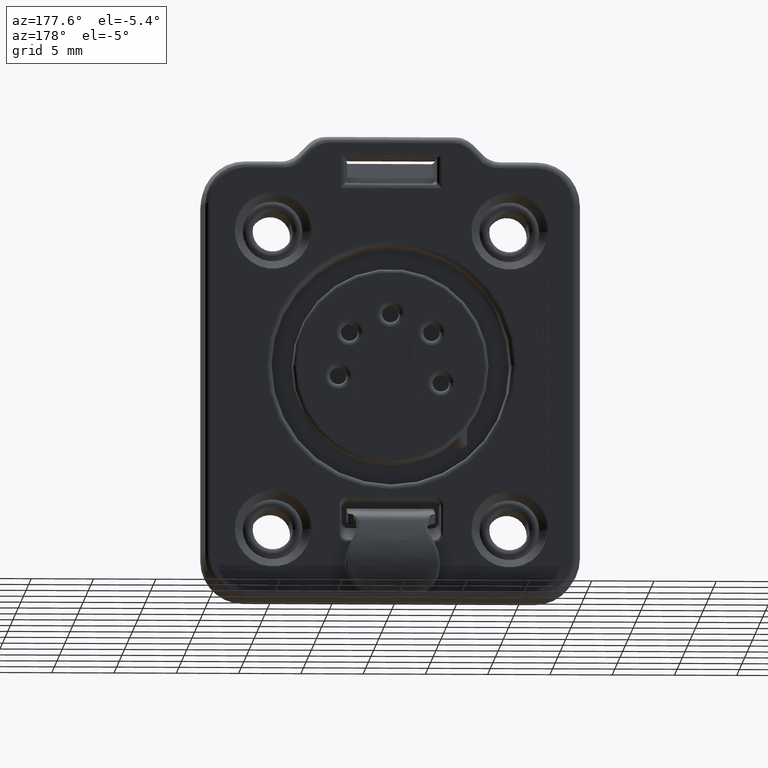
[diagram: clean part render]
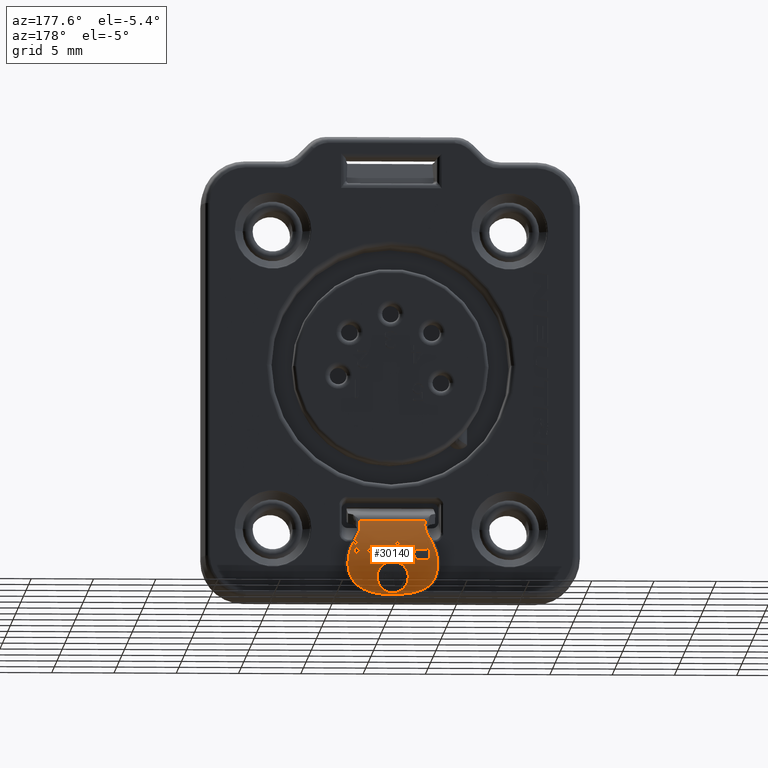
[diagram: same view with one face highlighted and labeled with its STEP entity id]
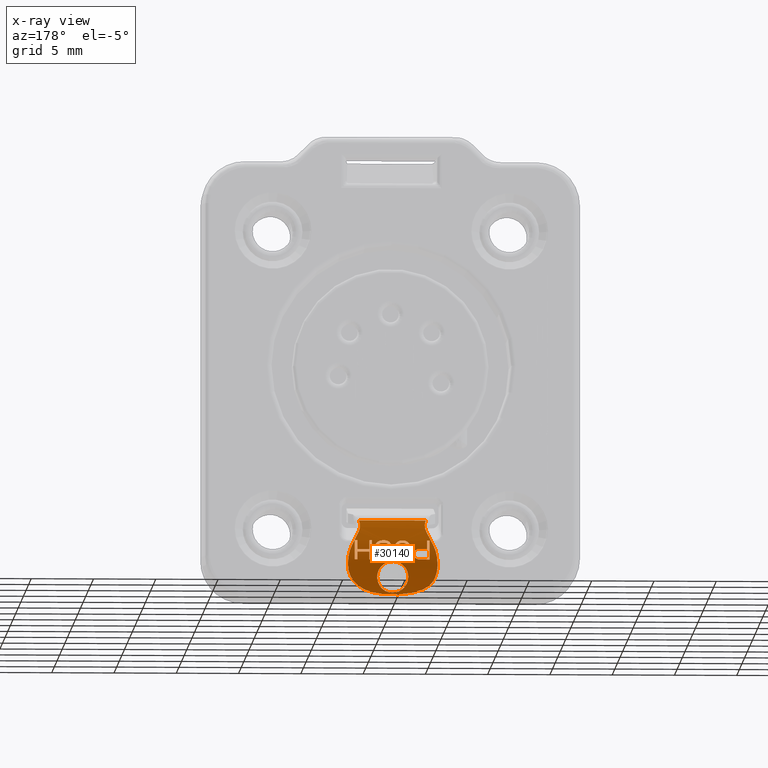
[diagram: x-ray of the same camera — body ghosted, the highlighted face saturated]
A machine part, auxiliary view. The second image highlights one B-rep face of the part: STEP entity #30140.
The next image is the same camera in x-ray: the body ghosted, the highlighted face saturated — about 0% of this face is hidden behind the body in this view.
In plain terms, the highlighted cylindrical surface (partial cylindrical patch) has radius 8 mm, axis along (1, 0, 0).
Its self-contained STEP definition (entity closure, byte-faithful):
#9027=CARTESIAN_POINT('',(1.25E0,6.687318850774E0,-1.612084744617E1));
#9028=CARTESIAN_POINT('',(1.25E0,6.698769143272E0,-1.603883747024E1));
#9029=CARTESIAN_POINT('',(1.234214572083E0,6.718670534713E0,-1.587794358300E1));
#9030=CARTESIAN_POINT('',(1.163320554176E0,6.740643629452E0,-1.564186100599E1));
#9031=CARTESIAN_POINT('',(1.047826529073E0,6.754535862257E0,-1.542465057716E1));
#9032=CARTESIAN_POINT('',(8.917643548989E-1,6.761819341635E0,
-1.523340477467E1));
#9033=CARTESIAN_POINT('',(7.009941548845E-1,6.764327699851E0,
-1.507612128600E1));
#9034=CARTESIAN_POINT('',(4.828299957937E-1,6.764161719371E0,
-1.495906946687E1));
#9035=CARTESIAN_POINT('',(2.462103854089E-1,6.763197070064E0,
-1.488707388502E1));
#9036=CARTESIAN_POINT('',(8.669659481138E-5,6.762723022616E0,
-1.486274273153E1));
#9037=CARTESIAN_POINT('',(-2.460488163844E-1,6.763196468411E0,
-1.488703988312E1));
#9038=CARTESIAN_POINT('',(-4.827169339654E-1,6.764161343639E0,
-1.495901940026E1));
#9039=CARTESIAN_POINT('',(-7.009160868965E-1,6.764328077162E0,
-1.507606802371E1));
#9040=CARTESIAN_POINT('',(-8.916911060393E-1,6.761821059110E0,
-1.523333341052E1));
#9041=CARTESIAN_POINT('',(-1.047754546807E0,6.754541106398E0,
-1.542454417868E1));
#9042=CARTESIAN_POINT('',(-1.163264131466E0,6.740653518329E0,
-1.564172966339E1));
#9043=CARTESIAN_POINT('',(-1.234186024740E0,6.718688356540E0,
-1.587778304351E1));
#9044=CARTESIAN_POINT('',(-1.25E0,6.698778330909E0,-1.603877166599E1));
#9045=CARTESIAN_POINT('',(-1.25E0,6.687318850774E0,-1.612084744617E1));
#9047=CARTESIAN_POINT('',(-1.25E0,6.687318850774E0,-1.612084744617E1));
#9048=CARTESIAN_POINT('',(-1.25E0,6.675653566528E0,-1.620439724897E1));
#9049=CARTESIAN_POINT('',(-1.233649562757E0,6.650186628732E0,
-1.636777820604E1));
#9050=CARTESIAN_POINT('',(-1.160690285477E0,6.605348047290E0,
-1.660658565844E1));
#9051=CARTESIAN_POINT('',(-1.043136462677E0,6.557797339966E0,
-1.682403607948E1));
#9052=CARTESIAN_POINT('',(-8.866644510329E-1,6.511195383418E0,
-1.701315852394E1));
#9053=CARTESIAN_POINT('',(-6.977074674049E-1,6.469476936710E0,
-1.716746755763E1));
#9054=CARTESIAN_POINT('',(-4.824658197265E-1,6.436149232079E0,
-1.728262734117E1));
#9055=CARTESIAN_POINT('',(-2.464479913528E-1,6.414351426570E0,
-1.735459043572E1));
#9056=CARTESIAN_POINT('',(1.382929777687E-5,6.406792553152E0,
-1.737897558427E1));
#9057=CARTESIAN_POINT('',(2.463675711055E-1,6.414350915856E0,
-1.735459190419E1));
#9058=CARTESIAN_POINT('',(4.821101801044E-1,6.436111761594E0,
-1.728275112852E1));
#9059=CARTESIAN_POINT('',(6.971484252033E-1,6.469375394291E0,
-1.716782605491E1));
#9060=CARTESIAN_POINT('',(8.861683407942E-1,6.511066012162E0,
-1.701365804862E1));
#9061=CARTESIAN_POINT('',(1.042844055104E0,6.557691597965E0,-1.682449705015E1));
#9062=CARTESIAN_POINT('',(1.160582457468E0,6.605291061788E0,-1.660687334201E1));
#9063=CARTESIAN_POINT('',(1.233620323832E0,6.650155574717E0,-1.636796674241E1));
#9064=CARTESIAN_POINT('',(1.25E0,6.675644297801E0,-1.620446363401E1));
#9065=CARTESIAN_POINT('',(1.25E0,6.687318850774E0,-1.612084744617E1));
#9067=CARTESIAN_POINT('',(-2.967E0,-1.235827191578E0,-1.501461203200E1));
#9068=DIRECTION('',(1.E0,0.E0,0.E0));
#9069=DIRECTION('',(0.E0,9.992998951604E-1,3.741282577373E-2));
#9070=AXIS2_PLACEMENT_3D('',#9067,#9068,#9069);
#9072=DIRECTION('',(1.E0,0.E0,0.E0));
#9073=VECTOR('',#9072,2.073389855635E-1);
#9074=CARTESIAN_POINT('',(-2.967E0,6.547968353088E0,-1.316730942581E1));
#9075=LINE('',#9074,#9073);
#9076=CARTESIAN_POINT('',(-2.759661014437E0,-1.235827191578E0,
-1.501461203200E1));
#9077=DIRECTION('',(1.E0,0.E0,0.E0));
#9078=DIRECTION('',(0.E0,9.895113156718E-1,1.444553777383E-1));
#9079=AXIS2_PLACEMENT_3D('',#9076,#9077,#9078);
#9081=DIRECTION('',(1.E0,0.E0,0.E0));
#9082=VECTOR('',#9081,6.220169566904E-1);
#9083=CARTESIAN_POINT('',(-2.759661014437E0,6.680263333796E0,
-1.385896901010E1));
#9084=LINE('',#9083,#9082);
#9085=CARTESIAN_POINT('',(-1.964861536821E0,6.685001636035E0,
-1.389190517638E1));
#9086=CARTESIAN_POINT('',(-2.022456326539E0,6.683445483430E0,
-1.388092633685E1));
#9087=CARTESIAN_POINT('',(-2.080050500536E0,6.681866062788E0,
-1.386994761469E1));
#9088=CARTESIAN_POINT('',(-2.137644057746E0,6.680263333796E0,
-1.385896901010E1));
#9090=CARTESIAN_POINT('',(-1.826635579401E0,6.698379268745E0,
-1.399071367524E1));
#9091=CARTESIAN_POINT('',(-1.872724197092E0,6.694127675326E0,
-1.395776800271E1));
#9092=CARTESIAN_POINT('',(-1.918799531E0,6.689668694990E0,-1.392483182587E1));
#9093=CARTESIAN_POINT('',(-1.964861536821E0,6.685001636035E0,
-1.389190517638E1));
#9095=CARTESIAN_POINT('',(-1.722966086619E0,6.714271033635E0,
-1.412245834039E1));
#9096=CARTESIAN_POINT('',(-1.757544046029E0,6.709339879169E0,
-1.407851617802E1));
#9097=CARTESIAN_POINT('',(-1.792100559904E0,6.704042901939E0,
-1.403460126895E1));
#9098=CARTESIAN_POINT('',(-1.826635579401E0,6.698379268745E0,
-1.399071367524E1));
#9100=CARTESIAN_POINT('',(-1.688409621981E0,6.724738328857E0,
-1.422126683925E1));
#9101=CARTESIAN_POINT('',(-1.699935203377E0,6.721454003963E0,
-1.418831134429E1));
#9102=CARTESIAN_POINT('',(-1.711454025883E0,6.717964934630E0,
-1.415537517525E1));
#9103=CARTESIAN_POINT('',(-1.722966086619E0,6.714271033635E0,
-1.412245834039E1));
#9105=CARTESIAN_POINT('',(-1.688409621981E0,-1.235827191578E0,
-1.501461203200E1));
#9106=DIRECTION('',(1.E0,0.E0,0.E0));
#9107=DIRECTION('',(0.E0,9.965744834177E-1,8.270005441762E-2));
#9108=AXIS2_PLACEMENT_3D('',#9105,#9106,#9107);
#9110=CARTESIAN_POINT('',(-1.722966086619E0,6.744352332482E0,
-1.445182009552E1));
#9111=CARTESIAN_POINT('',(-1.711442383122E0,6.742028567104E0,
-1.441886997010E1));
#9112=CARTESIAN_POINT('',(-1.699923561072E0,6.739500702571E0,
-1.438593380237E1));
#9113=CARTESIAN_POINT('',(-1.688409621981E0,6.736768675764E0,
-1.435301159666E1));
#9115=CARTESIAN_POINT('',(-1.826635579401E0,6.752551758489E0,
-1.458356476067E1));
#9116=CARTESIAN_POINT('',(-1.792068109130E0,6.750181389788E0,
-1.453963592805E1));
#9117=CARTESIAN_POINT('',(-1.757511607236E0,6.747448389936E0,
-1.449572103420E1));
#9118=CARTESIAN_POINT('',(-1.722966086619E0,6.744352332482E0,
-1.445182009552E1));
#9120=CARTESIAN_POINT('',(-1.964861536821E0,6.757270918546E0,
-1.468237325952E1));
#9121=CARTESIAN_POINT('',(-1.918781610388E0,6.755901766620E0,
-1.464943379979E1));
#9122=CARTESIAN_POINT('',(-1.872706289449E0,6.754328792917E0,
-1.461649763222E1));
#9123=CARTESIAN_POINT('',(-1.826635579401E0,6.752551758489E0,
-1.458356476067E1));
#9125=CARTESIAN_POINT('',(-2.137644057746E0,6.758571969705E0,
-1.471530942581E1));
#9126=CARTESIAN_POINT('',(-2.080049719531E0,6.758160935748E0,
-1.470433067234E1));
#9127=CARTESIAN_POINT('',(-2.022455545864E0,6.757727255585E0,
-1.469335195024E1));
#9128=CARTESIAN_POINT('',(-1.964861536821E0,6.757270918546E0,
-1.468237325952E1));
#9130=DIRECTION('',(1.E0,0.E0,0.E0));
#9131=VECTOR('',#9130,8.293559422539E-1);
#9132=CARTESIAN_POINT('',(-2.967E0,6.758571969705E0,-1.471530942581E1));
#9133=LINE('',#9132,#9131);
#9182=CARTESIAN_POINT('',(-1.411957608274E0,6.654467150237E0,
-1.369428813253E1));
#9183=CARTESIAN_POINT('',(-1.400418217277E0,6.645265114505E0,
-1.363929649715E1));
#9184=CARTESIAN_POINT('',(-1.388899392596E0,6.635488547427E0,
-1.358440287173E1));
#9185=CARTESIAN_POINT('',(-1.377401143636E0,6.625137186232E0,
-1.352960730110E1));
#9187=CARTESIAN_POINT('',(-1.377401143636E0,6.625137186232E0,
-1.352960730110E1));
#9188=CARTESIAN_POINT('',(-1.354333266663E0,6.616830403952E0,
-1.348563483540E1));
#9189=CARTESIAN_POINT('',(-1.331295569630E0,6.608152391729E0,
-1.344171989932E1));
#9190=CARTESIAN_POINT('',(-1.308288115492E0,6.599102375162E0,
-1.339786261288E1));
#9192=CARTESIAN_POINT('',(-1.308288115492E0,6.599102375162E0,
-1.339786261288E1));
#9193=CARTESIAN_POINT('',(-1.262172112290E0,6.590032476470E0,
-1.335390897567E1));
#9194=CARTESIAN_POINT('',(-1.216096684591E0,6.580584970539E0,
-1.330999401138E1));
#9195=CARTESIAN_POINT('',(-1.170062059205E0,6.570757746598E0,
-1.326611793620E1));
#9197=CARTESIAN_POINT('',(-1.170062059205E0,6.570757746598E0,
-1.326611793620E1));
#9198=CARTESIAN_POINT('',(-1.123978207505E0,6.565838873092E0,
-1.324415640718E1));
#9199=CARTESIAN_POINT('',(-1.077902907972E0,6.560823591986E0,
-1.322219895375E1));
#9200=CARTESIAN_POINT('',(-1.031836200652E0,6.555711451862E0,
-1.320024559498E1));
#9202=CARTESIAN_POINT('',(-1.031836200652E0,6.555711451862E0,
-1.320024559498E1));
#9203=CARTESIAN_POINT('',(-9.742409371936E-1,6.553154858990E0,
-1.318926667046E1));
#9204=CARTESIAN_POINT('',(-9.166467295837E-1,6.550573849479E0,
-1.317828794721E1));
#9205=CARTESIAN_POINT('',(-8.590535808600E-1,6.547968353088E0,
-1.316730942581E1));
#9207=DIRECTION('',(1.E0,0.E0,0.E0));
#9208=VECTOR('',#9207,1.382258585531E-1);
#9209=CARTESIAN_POINT('',(-8.590535808600E-1,6.547968353088E0,
-1.316730942581E1));
#9210=LINE('',#9209,#9208);
#9211=CARTESIAN_POINT('',(-5.480451025148E-1,6.555711451862E0,
-1.320024559498E1));
#9212=CARTESIAN_POINT('',(-6.056403659734E-1,6.553154858990E0,
-1.318926667046E1));
#9213=CARTESIAN_POINT('',(-6.632345735833E-1,6.550573849479E0,
-1.317828794721E1));
#9214=CARTESIAN_POINT('',(-7.208277223069E-1,6.547968353088E0,
-1.316730942581E1));
#9216=CARTESIAN_POINT('',(-4.098192439617E-1,6.570757746598E0,
-1.326611793620E1));
#9217=CARTESIAN_POINT('',(-4.559030956623E-1,6.565838873092E0,
-1.324415640718E1));
#9218=CARTESIAN_POINT('',(-5.019783951948E-1,6.560823591986E0,
-1.322219895375E1));
#9219=CARTESIAN_POINT('',(-5.480451025148E-1,6.555711451862E0,
-1.320024559498E1));
#9221=CARTESIAN_POINT('',(-2.715931876748E-1,6.599102375162E0,
-1.339786261288E1));
#9222=CARTESIAN_POINT('',(-3.177091908767E-1,6.590032476470E0,
-1.335390897567E1));
#9223=CARTESIAN_POINT('',(-3.637846185762E-1,6.580584970539E0,
-1.330999401138E1));
#9224=CARTESIAN_POINT('',(-4.098192439617E-1,6.570757746598E0,
-1.326611793620E1));
#9226=CARTESIAN_POINT('',(-2.024802583983E-1,6.625137186232E0,
-1.352960730110E1));
#9227=CARTESIAN_POINT('',(-2.255481023898E-1,6.616830403945E0,
-1.348563483536E1));
#9228=CARTESIAN_POINT('',(-2.485857664674E-1,6.608152391722E0,
-1.344171989929E1));
#9229=CARTESIAN_POINT('',(-2.715931876748E-1,6.599102375162E0,
-1.339786261288E1));
#9231=CARTESIAN_POINT('',(-1.679236948931E-1,6.654467150237E0,
-1.369428813253E1));
#9232=CARTESIAN_POINT('',(-1.794631188993E-1,6.645265114509E0,
-1.363929649717E1));
#9233=CARTESIAN_POINT('',(-1.909819765364E-1,6.635488547431E0,
-1.358440287175E1));
#9234=CARTESIAN_POINT('',(-2.024802583983E-1,6.625137186232E0,
-1.352960730110E1));
#9236=CARTESIAN_POINT('',(-1.679236948931E-1,-1.235827191578E0,
-1.501461203200E1));
#9237=DIRECTION('',(1.E0,0.E0,0.E0));
#9238=DIRECTION('',(0.E0,9.992998951604E-1,3.741282577373E-2));
#9239=AXIS2_PLACEMENT_3D('',#9236,#9237,#9238);
#9241=DIRECTION('',(1.E0,0.E0,0.E0));
#9242=VECTOR('',#9241,2.073389855635E-1);
#9243=CARTESIAN_POINT('',(-3.752626804565E-1,6.758571969705E0,
-1.471530942581E1));
#9244=LINE('',#9243,#9242);
#9245=CARTESIAN_POINT('',(-3.752626804565E-1,-1.235827191578E0,
-1.501461203200E1));
#9246=DIRECTION('',(1.E0,0.E0,0.E0));
#9247=DIRECTION('',(0.E0,9.992998951604E-1,3.741282577373E-2));
#9248=AXIS2_PLACEMENT_3D('',#9245,#9246,#9247);
#9250=CARTESIAN_POINT('',(-3.752626804565E-1,6.654467150237E0,
-1.369428813253E1));
#9251=CARTESIAN_POINT('',(-3.867974179650E-1,6.647108511428E0,
-1.365031269121E1));
#9252=CARTESIAN_POINT('',(-3.983162753902E-1,6.639382099244E0,
-1.360639779168E1));
#9253=CARTESIAN_POINT('',(-4.098192439617E-1,6.631287710573E0,
-1.356254346738E1));
#9255=CARTESIAN_POINT('',(-4.098192439617E-1,6.631287710573E0,
-1.356254346738E1));
#9256=CARTESIAN_POINT('',(-4.328756827313E-1,6.625203575327E0,
-1.352958042953E1));
#9257=CARTESIAN_POINT('',(-4.559133403105E-1,6.618910175222E0,
-1.349664424253E1));
#9258=CARTESIAN_POINT('',(-4.789321732383E-1,6.612407026001E0,
-1.346373496852E1));
#9260=CARTESIAN_POINT('',(-4.789321732383E-1,6.612407026001E0,
-1.346373496852E1));
#9261=CARTESIAN_POINT('',(-5.134973396857E-1,6.608066960431E0,
-1.344177200839E1));
#9262=CARTESIAN_POINT('',(-5.480538476422E-1,6.603632190161E0,
-1.341981454993E1));
#9263=CARTESIAN_POINT('',(-5.826016660200E-1,6.599102375162E0,
-1.339786261288E1));
#9265=CARTESIAN_POINT('',(-5.826016660200E-1,6.599102375162E0,
-1.339786261288E1));
#9266=CARTESIAN_POINT('',(-6.286781477732E-1,6.596836843915E0,
-1.338688362162E1));
#9267=CARTESIAN_POINT('',(-6.747535008046E-1,6.594547308559E0,
-1.337590489930E1));
#9268=CARTESIAN_POINT('',(-7.208277223070E-1,6.592233709393E0,
-1.336492644660E1));
#9270=DIRECTION('',(1.E0,0.E0,0.E0));
#9271=VECTOR('',#9270,1.382258585531E-1);
#9272=CARTESIAN_POINT('',(-8.590535808600E-1,6.592233709393E0,
-1.336492644660E1));
#9273=LINE('',#9272,#9271);
#9274=CARTESIAN_POINT('',(-9.972796371470E-1,6.599102375162E0,
-1.339786261288E1));
#9275=CARTESIAN_POINT('',(-9.512031553937E-1,6.596836843915E0,
-1.338688362162E1));
#9276=CARTESIAN_POINT('',(-9.051278023623E-1,6.594547308559E0,
-1.337590489930E1));
#9277=CARTESIAN_POINT('',(-8.590535808600E-1,6.592233709393E0,
-1.336492644660E1));
#9279=CARTESIAN_POINT('',(-1.100949129929E0,6.612407026001E0,
-1.346373496852E1));
#9280=CARTESIAN_POINT('',(-1.066383963481E0,6.608066960431E0,
-1.344177200839E1));
#9281=CARTESIAN_POINT('',(-1.031827455525E0,6.603632190161E0,
-1.341981454993E1));
#9282=CARTESIAN_POINT('',(-9.972796371470E-1,6.599102375162E0,
-1.339786261288E1));
#9284=CARTESIAN_POINT('',(-1.170062059205E0,6.631287710573E0,
-1.356254346738E1));
#9285=CARTESIAN_POINT('',(-1.147005620436E0,6.625203575327E0,
-1.352958042953E1));
#9286=CARTESIAN_POINT('',(-1.123967962856E0,6.618910175222E0,
-1.349664424253E1));
#9287=CARTESIAN_POINT('',(-1.100949129929E0,6.612407026001E0,
-1.346373496852E1));
#9289=CARTESIAN_POINT('',(-1.204618622710E0,6.654467150237E0,
-1.369428813253E1));
#9290=CARTESIAN_POINT('',(-1.193083885202E0,6.647108511428E0,
-1.365031269121E1));
#9291=CARTESIAN_POINT('',(-1.181565027777E0,6.639382099244E0,
-1.360639779168E1));
#9292=CARTESIAN_POINT('',(-1.170062059205E0,6.631287710573E0,
-1.356254346738E1));
#9294=CARTESIAN_POINT('',(-1.204618622710E0,-1.235827191578E0,
-1.501461203200E1));
#9295=DIRECTION('',(1.E0,0.E0,0.E0));
#9296=DIRECTION('',(0.E0,9.992998951604E-1,3.741282577373E-2));
#9297=AXIS2_PLACEMENT_3D('',#9294,#9295,#9296);
#9299=DIRECTION('',(1.E0,0.E0,0.E0));
#9300=VECTOR('',#9299,2.073389855635E-1);
#9301=CARTESIAN_POINT('',(-1.411957608274E0,6.758571969705E0,
-1.471530942581E1));
#9302=LINE('',#9301,#9300);
#9303=CARTESIAN_POINT('',(-1.411957608274E0,-1.235827191578E0,
-1.501461203200E1));
#9304=DIRECTION('',(1.E0,0.E0,0.E0));
#9305=DIRECTION('',(0.E0,9.992998951604E-1,3.741282577373E-2));
#9306=AXIS2_PLACEMENT_3D('',#9303,#9304,#9305);
#9308=CARTESIAN_POINT('',(2.467542762339E-1,6.710505846674E0,
-1.408952217410E1));
#9309=CARTESIAN_POINT('',(2.928524550103E-1,6.705390858116E0,
-1.404558546652E1));
#9310=CARTESIAN_POINT('',(3.389277658770E-1,6.699909093240E0,
-1.400167055462E1));
#9311=CARTESIAN_POINT('',(3.849801347870E-1,6.694059364414E0,
-1.395777750895E1));
#9313=CARTESIAN_POINT('',(3.849801347870E-1,6.694059364414E0,
-1.395777750895E1));
#9314=CARTESIAN_POINT('',(4.310604982423E-1,6.691132730392E0,
-1.393581770799E1));
#9315=CARTESIAN_POINT('',(4.771359208412E-1,6.688113573591E0,
-1.391386026161E1));
#9316=CARTESIAN_POINT('',(5.232063888078E-1,6.685001636035E0,
-1.389190517638E1));
#9318=CARTESIAN_POINT('',(5.232063888078E-1,6.685001636035E0,
-1.389190517638E1));
#9319=CARTESIAN_POINT('',(5.692824299062E-1,6.683445474580E0,
-1.388092627441E1));
#9320=CARTESIAN_POINT('',(6.153577165177E-1,6.681866053667E0,
-1.386994755221E1));
#9321=CARTESIAN_POINT('',(6.614322473608E-1,6.680263333796E0,
-1.385896901010E1));
#9323=DIRECTION('',(1.E0,0.E0,0.E0));
#9324=VECTOR('',#9323,2.073389855635E-1);
#9325=CARTESIAN_POINT('',(6.614322473608E-1,6.680263333796E0,
-1.385896901010E1));
#9326=LINE('',#9325,#9324);
#9327=CARTESIAN_POINT('',(8.687712329243E-1,6.680263333796E0,
-1.385896901010E1));
#9328=CARTESIAN_POINT('',(9.148472976801E-1,6.678660560568E0,
-1.384799010248E1));
#9329=CARTESIAN_POINT('',(9.609225843182E-1,6.677034487606E0,
-1.383701138028E1));
#9330=CARTESIAN_POINT('',(1.006997091477E0,6.675385074149E0,-1.382603284381E1));
#9332=CARTESIAN_POINT('',(1.006997091477E0,6.675385074149E0,-1.382603284381E1));
#9333=CARTESIAN_POINT('',(1.041560091456E0,6.672085570720E0,-1.380407126796E1));
#9334=CARTESIAN_POINT('',(1.076116594975E0,6.668693176804E0,-1.378211382E1));
#9335=CARTESIAN_POINT('',(1.110666584259E0,6.665207638243E0,-1.376016051124E1));
#9337=CARTESIAN_POINT('',(1.110666584259E0,6.665207638243E0,-1.376016051124E1));
#9338=CARTESIAN_POINT('',(1.133720424305E0,6.659974681524E0,-1.372720126760E1));
#9339=CARTESIAN_POINT('',(1.156758144074E0,6.654533958835E0,-1.369426507055E1));
#9340=CARTESIAN_POINT('',(1.179779711270E0,6.648885053927E0,-1.366135196624E1));
#9342=CARTESIAN_POINT('',(1.179779711270E0,-1.235827191578E0,
-1.501461203200E1));
#9343=DIRECTION('',(1.E0,0.E0,0.E0));
#9344=DIRECTION('',(0.E0,9.855890306882E-1,1.691575082199E-1));
#9345=AXIS2_PLACEMENT_3D('',#9342,#9343,#9344);
#9347=CARTESIAN_POINT('',(1.179779711270E0,6.631287710573E0,-1.356254346738E1));
#9348=CARTESIAN_POINT('',(1.156723206569E0,6.625203575336E0,-1.352958042958E1));
#9349=CARTESIAN_POINT('',(1.133685483079E0,6.618910175231E0,-1.349664424258E1));
#9350=CARTESIAN_POINT('',(1.110666584259E0,6.612407026001E0,-1.346373496852E1));
#9352=CARTESIAN_POINT('',(1.110666584259E0,6.612407026001E0,-1.346373496852E1));
#9353=CARTESIAN_POINT('',(1.076101417812E0,6.608066960431E0,-1.344177200839E1));
#9354=CARTESIAN_POINT('',(1.041544909855E0,6.603632190161E0,-1.341981454993E1));
#9355=CARTESIAN_POINT('',(1.006997091477E0,6.599102375162E0,-1.339786261288E1));
#9357=CARTESIAN_POINT('',(1.006997091477E0,6.599102375162E0,-1.339786261288E1));
#9358=CARTESIAN_POINT('',(9.609206756340E-1,6.596836843915E0,
-1.338688362162E1));
#9359=CARTESIAN_POINT('',(9.148453885139E-1,6.594547308559E0,
-1.337590489930E1));
#9360=CARTESIAN_POINT('',(8.687712329243E-1,6.592233709393E0,
-1.336492644660E1));
#9362=DIRECTION('',(1.E0,0.E0,0.E0));
#9363=VECTOR('',#9362,2.764521125739E-1);
#9364=CARTESIAN_POINT('',(5.923191203504E-1,6.592233709393E0,
-1.336492644660E1));
#9365=LINE('',#9364,#9363);
#9366=CARTESIAN_POINT('',(4.540932617974E-1,6.599102375162E0,
-1.339786261288E1));
#9367=CARTESIAN_POINT('',(5.001696776407E-1,6.596836843915E0,
-1.338688362162E1));
#9368=CARTESIAN_POINT('',(5.462449647608E-1,6.594547308559E0,
-1.337590489930E1));
#9369=CARTESIAN_POINT('',(5.923191203504E-1,6.592233709393E0,
-1.336492644660E1));
#9371=CARTESIAN_POINT('',(3.504237690156E-1,6.618843739316E0,
-1.349667113481E1));
#9372=CARTESIAN_POINT('',(3.850013752506E-1,6.612474827725E0,
-1.346371484196E1));
#9373=CARTESIAN_POINT('',(4.195579001770E-1,6.605894646923E0,
-1.343077864193E1));
#9374=CARTESIAN_POINT('',(4.540932617974E-1,6.599102375162E0,
-1.339786261288E1));
#9376=CARTESIAN_POINT('',(3.158672055104E-1,6.637295647296E0,
-1.359547963367E1));
#9377=CARTESIAN_POINT('',(3.273981441216E-1,6.631352666847E0,
-1.356250891497E1));
#9378=CARTESIAN_POINT('',(3.389170016206E-1,6.625202082359E0,
-1.352957274011E1));
#9379=CARTESIAN_POINT('',(3.504237690156E-1,6.618843739316E0,
-1.349667113481E1));
#9381=DIRECTION('',(1.E0,0.E0,0.E0));
#9382=VECTOR('',#9381,2.073389855635E-1);
#9383=CARTESIAN_POINT('',(1.085282199470E-1,6.637295647296E0,
-1.359547963367E1));
#9384=LINE('',#9383,#9382);
#9385=CARTESIAN_POINT('',(1.085282199470E-1,6.637295647296E0,
-1.359547963367E1));
#9386=CARTESIAN_POINT('',(1.200641725050E-1,6.629368227818E0,
-1.355149956005E1));
#9387=CARTESIAN_POINT('',(1.315830303791E-1,6.621072093458E0,
-1.350758465881E1));
#9388=CARTESIAN_POINT('',(1.430847834522E-1,6.612407026001E0,
-1.346373496852E1));
#9390=CARTESIAN_POINT('',(1.430847834522E-1,6.612407026001E0,
-1.346373496852E1));
#9391=CARTESIAN_POINT('',(1.776961705193E-1,6.601542354733E0,
-1.340875415359E1));
#9392=CARTESIAN_POINT('',(2.122527344079E-1,6.590094647214E0,
-1.335386042627E1));
#9393=CARTESIAN_POINT('',(2.467542762339E-1,6.578061788341E0,
-1.329905410249E1));
#9395=CARTESIAN_POINT('',(2.467542762339E-1,6.578061788341E0,
-1.329905410249E1));
#9396=CARTESIAN_POINT('',(3.043695630418E-1,6.570827927266E0,
-1.326610587826E1));
#9397=CARTESIAN_POINT('',(3.619638146223E-1,6.563378276564E0,
-1.323316968337E1));
#9398=CARTESIAN_POINT('',(4.195368960260E-1,6.555711451862E0,
-1.320024559498E1));
#9400=CARTESIAN_POINT('',(4.195368960260E-1,6.555711451862E0,
-1.320024559498E1));
#9401=CARTESIAN_POINT('',(4.771320276643E-1,6.553154858989E0,
-1.318926667046E1));
#9402=CARTESIAN_POINT('',(5.347261034516E-1,6.550573849479E0,
-1.317828794721E1));
#9403=CARTESIAN_POINT('',(5.923191203504E-1,6.547968353088E0,
-1.316730942581E1));
#9405=DIRECTION('',(1.E0,0.E0,0.E0));
#9406=VECTOR('',#9405,2.764521125739E-1);
#9407=CARTESIAN_POINT('',(5.923191203504E-1,6.547968353088E0,
-1.316730942581E1));
#9408=LINE('',#9407,#9406);
#9409=CARTESIAN_POINT('',(1.041553852716E0,6.555711451862E0,-1.320024559498E1));
#9410=CARTESIAN_POINT('',(9.839585892579E-1,6.553154858990E0,
-1.318926667046E1));
#9411=CARTESIAN_POINT('',(9.263643816480E-1,6.550573849479E0,
-1.317828794721E1));
#9412=CARTESIAN_POINT('',(8.687712329243E-1,6.547968353088E0,
-1.316730942581E1));
#9414=CARTESIAN_POINT('',(1.179779711270E0,6.570757746598E0,-1.326611793620E1));
#9415=CARTESIAN_POINT('',(1.133695859569E0,6.565838873092E0,-1.324415640718E1));
#9416=CARTESIAN_POINT('',(1.087620560036E0,6.560823591986E0,-1.322219895375E1));
#9417=CARTESIAN_POINT('',(1.041553852716E0,6.555711451862E0,-1.320024559498E1));
#9419=CARTESIAN_POINT('',(1.318005569823E0,6.599102375162E0,-1.339786261288E1));
#9420=CARTESIAN_POINT('',(1.271889632530E0,6.590032476458E0,-1.335390897561E1));
#9421=CARTESIAN_POINT('',(1.225814270742E0,6.580584970526E0,-1.330999401133E1));
#9422=CARTESIAN_POINT('',(1.179779711270E0,6.570757746598E0,-1.326611793620E1));
#9424=CARTESIAN_POINT('',(1.387118696833E0,6.625137186232E0,-1.352960730110E1));
#9425=CARTESIAN_POINT('',(1.364050786880E0,6.616830403959E0,-1.348563483543E1));
#9426=CARTESIAN_POINT('',(1.341013056891E0,6.608152391736E0,-1.344171989936E1));
#9427=CARTESIAN_POINT('',(1.318005569823E0,6.599102375162E0,-1.339786261288E1));
#9429=CARTESIAN_POINT('',(1.387118696833E0,-1.235827191578E0,
-1.501461203200E1));
#9430=DIRECTION('',(1.E0,0.E0,0.E0));
#9431=DIRECTION('',(0.E0,9.862867927269E-1,1.650404874340E-1));
#9432=AXIS2_PLACEMENT_3D('',#9429,#9430,#9431);
#9434=CARTESIAN_POINT('',(1.318005569823E0,6.675385074149E0,-1.382603284381E1));
#9435=CARTESIAN_POINT('',(1.341067315554E0,6.668780422585E0,-1.378207212080E1));
#9436=CARTESIAN_POINT('',(1.364105038028E0,6.661807987513E0,-1.373815719136E1));
#9437=CARTESIAN_POINT('',(1.387118696833E0,6.654467150237E0,-1.369428813253E1));
#9439=CARTESIAN_POINT('',(1.179779711270E0,6.694059364414E0,-1.395777750895E1));
#9440=CARTESIAN_POINT('',(1.225881106777E0,6.688203408062E0,-1.391383773547E1));
#9441=CARTESIAN_POINT('',(1.271956424930E0,6.681979096216E0,-1.386992281662E1));
#9442=CARTESIAN_POINT('',(1.318005569823E0,6.675385074149E0,-1.382603284381E1));
#9444=CARTESIAN_POINT('',(1.041553852716E0,6.702560172179E0,-1.402364984153E1));
#9445=CARTESIAN_POINT('',(1.087633766950E0,6.699818912325E0,-1.400169019181E1));
#9446=CARTESIAN_POINT('',(1.133709057164E0,6.696985390151E0,-1.397973274570E1));
#9447=CARTESIAN_POINT('',(1.179779711270E0,6.694059364414E0,-1.395777750895E1));
#9449=CARTESIAN_POINT('',(8.687712329243E-1,6.706602294227E0,
-1.405658600781E1));
#9450=CARTESIAN_POINT('',(9.263659608591E-1,6.705278014709E0,
-1.404560718634E1));
#9451=CARTESIAN_POINT('',(9.839601677124E-1,6.703930652034E0,
-1.403462846420E1));
#9452=CARTESIAN_POINT('',(1.041553852716E0,6.702560172179E0,-1.402364984153E1));
#9454=DIRECTION('',(1.E0,0.E0,0.E0));
#9455=VECTOR('',#9454,2.073389855635E-1);
#9456=CARTESIAN_POINT('',(6.614322473608E-1,6.706602294227E0,
-1.405658600781E1));
#9457=LINE('',#9456,#9455);
#9458=CARTESIAN_POINT('',(5.577627545791E-1,6.710505846674E0,
-1.408952217410E1));
#9459=CARTESIAN_POINT('',(5.923200402813E-1,6.709227705417E0,
-1.407854320162E1));
#9460=CARTESIAN_POINT('',(6.268765382265E-1,6.707926531542E0,
-1.406756447941E1));
#9461=CARTESIAN_POINT('',(6.614322473608E-1,6.706602294227E0,
-1.405658600781E1));
#9463=CARTESIAN_POINT('',(4.540932617974E-1,6.717898051613E0,
-1.415539450667E1));
#9464=CARTESIAN_POINT('',(4.886544200650E-1,6.715525733637E0,
-1.413343410106E1));
#9465=CARTESIAN_POINT('',(5.232109207360E-1,6.713061725899E0,
-1.411147665491E1));
#9466=CARTESIAN_POINT('',(5.577627545791E-1,6.710505846674E0,
-1.408952217410E1));
#9468=CARTESIAN_POINT('',(4.195368960260E-1,6.727951943510E0,
-1.425420300553E1));
#9469=CARTESIAN_POINT('',(4.310621740990E-1,6.724805313298E0,
-1.422124828359E1));
#9470=CARTESIAN_POINT('',(4.425809635747E-1,6.721454043919E0,
-1.418831211477E1));
#9471=CARTESIAN_POINT('',(4.540932617974E-1,6.717898051613E0,
-1.415539450667E1));
#9473=CARTESIAN_POINT('',(4.195368960260E-1,-1.235827191578E0,
-1.501461203200E1));
#9474=DIRECTION('',(1.E0,0.E0,0.E0));
#9475=DIRECTION('',(0.E0,9.962242686516E-1,8.681708673693E-2));
#9476=AXIS2_PLACEMENT_3D('',#9473,#9474,#9475);
#9478=CARTESIAN_POINT('',(4.540932617974E-1,6.741961225494E0,
-1.441888392923E1));
#9479=CARTESIAN_POINT('',(4.425693249119E-1,6.739500670423E0,
-1.438593301144E1));
#9480=CARTESIAN_POINT('',(4.310505357622E-1,6.736835936653E0,
-1.435299681279E1));
#9481=CARTESIAN_POINT('',(4.195368960260E-1,6.733966957635E0,
-1.432007533811E1));
#9483=CARTESIAN_POINT('',(5.577627545791E-1,6.746606827115E0,
-1.448475626181E1));
#9484=CARTESIAN_POINT('',(5.232033543079E-1,6.745149219607E0,
-1.446279697323E1));
#9485=CARTESIAN_POINT('',(4.886468555117E-1,6.743600723395E0,
-1.444083952828E1));
#9486=CARTESIAN_POINT('',(4.540932617974E-1,6.741961225494E0,
-1.441888392923E1));
#9488=CARTESIAN_POINT('',(6.614322473608E-1,6.748724825113E0,
-1.451769242809E1));
#9489=CARTESIAN_POINT('',(6.268753279815E-1,6.748041554617E0,
-1.450671357199E1));
#9490=CARTESIAN_POINT('',(5.923188302860E-1,6.747335560759E0,
-1.449573484987E1));
#9491=CARTESIAN_POINT('',(5.577627545791E-1,6.746606827115E0,
-1.448475626181E1));
#9493=DIRECTION('',(1.E0,0.E0,0.E0));
#9494=VECTOR('',#9493,2.073389855635E-1);
#9495=CARTESIAN_POINT('',(6.614322473608E-1,6.748724825113E0,
-1.451769242809E1));
#9496=LINE('',#9495,#9494);
#9497=CARTESIAN_POINT('',(8.687712329243E-1,6.748724825113E0,
-1.451769242809E1));
#9498=CARTESIAN_POINT('',(9.033281523036E-1,6.748041554617E0,
-1.450671357199E1));
#9499=CARTESIAN_POINT('',(9.378846499992E-1,6.747335560759E0,
-1.449573484987E1));
#9500=CARTESIAN_POINT('',(9.724407257061E-1,6.746606827115E0,
-1.448475626181E1));
#9502=CARTESIAN_POINT('',(9.724407257061E-1,6.746606827115E0,
-1.448475626181E1));
#9503=CARTESIAN_POINT('',(9.954816344862E-1,6.745149139598E0,
-1.446279576788E1));
#9504=CARTESIAN_POINT('',(1.018519344464E0,6.743600633375E0,-1.444083832276E1));
#9505=CARTESIAN_POINT('',(1.041553852716E0,6.741961225494E0,-1.441888392923E1));
#9507=CARTESIAN_POINT('',(1.041553852716E0,6.741961225494E0,-1.441888392923E1));
#9508=CARTESIAN_POINT('',(1.053075585648E0,6.740321170699E0,-1.439692087246E1));
#9509=CARTESIAN_POINT('',(1.064594374650E0,6.738590333486E0,-1.437496342748E1));
#9510=CARTESIAN_POINT('',(1.076110218488E0,6.736768675764E0,-1.435301159666E1));
#9512=DIRECTION('',(1.E0,0.E0,0.E0));
#9513=VECTOR('',#9512,2.073389855635E-1);
#9514=CARTESIAN_POINT('',(1.076110218488E0,6.736768675764E0,-1.435301159666E1));
#9515=LINE('',#9514,#9513);
#9516=CARTESIAN_POINT('',(1.248892838280E0,6.744352332482E0,-1.445182009552E1));
#9517=CARTESIAN_POINT('',(1.260416508811E0,6.742028567103E0,-1.441886997009E1));
#9518=CARTESIAN_POINT('',(1.271935297904E0,6.739500702570E0,-1.438593380237E1));
#9519=CARTESIAN_POINT('',(1.283449204051E0,6.736768675764E0,-1.435301159666E1));
#9521=CARTESIAN_POINT('',(1.145223345498E0,6.752551758489E0,-1.458356476067E1));
#9522=CARTESIAN_POINT('',(1.179790815769E0,6.750181389788E0,-1.453963592805E1));
#9523=CARTESIAN_POINT('',(1.214347317663E0,6.747448389936E0,-1.449572103420E1));
#9524=CARTESIAN_POINT('',(1.248892838280E0,6.744352332482E0,-1.445182009552E1));
#9526=CARTESIAN_POINT('',(1.006997091477E0,6.757270918546E0,-1.468237325952E1));
#9527=CARTESIAN_POINT('',(1.053077116774E0,6.755901766621E0,-1.464943379980E1));
#9528=CARTESIAN_POINT('',(1.099152536580E0,6.754328792918E0,-1.461649763223E1));
#9529=CARTESIAN_POINT('',(1.145223345498E0,6.752551758489E0,-1.458356476067E1));
#9531=CARTESIAN_POINT('',(8.342148671530E-1,6.758571969705E0,
-1.471530942581E1));
#9532=CARTESIAN_POINT('',(8.918091065012E-1,6.758160935748E0,
-1.470433067234E1));
#9533=CARTESIAN_POINT('',(9.494031813019E-1,6.757727255585E0,
-1.469335195024E1));
#9534=CARTESIAN_POINT('',(1.006997091477E0,6.757270918546E0,-1.468237325952E1));
#9536=DIRECTION('',(1.E0,0.E0,0.E0));
#9537=VECTOR('',#9536,1.727826197921E-1);
#9538=CARTESIAN_POINT('',(6.614322473608E-1,6.758571969705E0,
-1.471530942581E1));
#9539=LINE('',#9538,#9537);
#9540=CARTESIAN_POINT('',(6.614322473608E-1,6.758571969705E0,
-1.471530942581E1));
#9541=CARTESIAN_POINT('',(6.153567594442E-1,6.758160935123E0,
-1.470433065565E1));
#9542=CARTESIAN_POINT('',(5.692814732288E-1,6.757727254891E0,
-1.469335193354E1));
#9543=CARTESIAN_POINT('',(5.232063888078E-1,6.757270918546E0,
-1.468237325952E1));
#9545=CARTESIAN_POINT('',(5.232063888078E-1,6.757270918546E0,
-1.468237325952E1));
#9546=CARTESIAN_POINT('',(4.771293623876E-1,6.756358209998E0,
-1.466041504884E1));
#9547=CARTESIAN_POINT('',(4.310539438871E-1,6.755354894893E0,
-1.463845760441E1));
#9548=CARTESIAN_POINT('',(3.849801347870E-1,6.754260889791E0,
-1.461650092695E1));
#9550=CARTESIAN_POINT('',(3.849801347870E-1,6.754260889791E0,
-1.461650092695E1));
#9551=CARTESIAN_POINT('',(3.388943223803E-1,6.752072303298E0,
-1.457257600591E1));
#9552=CARTESIAN_POINT('',(2.928190309170E-1,6.749521131001E0,
-1.452866111249E1));
#9553=CARTESIAN_POINT('',(2.467542762339E-1,6.746606827115E0,
-1.448475626181E1));
#9555=CARTESIAN_POINT('',(2.467542762339E-1,6.746606827115E0,
-1.448475626181E1));
#9556=CARTESIAN_POINT('',(2.352287740827E-1,6.743690174691E0,
-1.444081602969E1));
#9557=CARTESIAN_POINT('',(2.237099190559E-1,6.740410819553E0,
-1.439690113931E1));
#9558=CARTESIAN_POINT('',(2.121977127287E-1,6.736768675764E0,
-1.435301159666E1));
#9560=CARTESIAN_POINT('',(2.121977127287E-1,-1.235827191578E0,
-1.501461203200E1));
#9561=DIRECTION('',(1.E0,0.E0,0.E0));
#9562=DIRECTION('',(0.E0,9.965744834177E-1,8.270005441762E-2));
#9563=AXIS2_PLACEMENT_3D('',#9560,#9561,#9562);
#9565=CARTESIAN_POINT('',(2.121977127287E-1,6.724738328857E0,
-1.422126683925E1));
#9566=CARTESIAN_POINT('',(2.237262167867E-1,6.720358131077E0,
-1.417731516255E1));
#9567=CARTESIAN_POINT('',(2.352450723880E-1,6.715614011822E0,
-1.413340026998E1));
#9568=CARTESIAN_POINT('',(2.467542762339E-1,6.710505846674E0,
-1.408952217410E1));
#9570=CARTESIAN_POINT('',(1.663570809407E0,-1.235827191578E0,
-1.501461203200E1));
#9571=DIRECTION('',(1.E0,0.E0,0.E0));
#9572=DIRECTION('',(0.E0,9.992998951604E-1,3.741282577373E-2));
#9573=AXIS2_PLACEMENT_3D('',#9570,#9571,#9572);
#9575=DIRECTION('',(1.E0,0.E0,0.E0));
#9576=VECTOR('',#9575,2.073389855635E-1);
#9577=CARTESIAN_POINT('',(1.663570809407E0,6.547968353088E0,-1.316730942581E1));
#9578=LINE('',#9577,#9576);
#9579=CARTESIAN_POINT('',(1.870909794970E0,-1.235827191578E0,
-1.501461203200E1));
#9580=DIRECTION('',(1.E0,0.E0,0.E0));
#9581=DIRECTION('',(0.E0,9.901036034516E-1,1.403383569524E-1));
#9582=AXIS2_PLACEMENT_3D('',#9579,#9580,#9581);
#9584=DIRECTION('',(1.E0,0.E0,0.E0));
#9585=VECTOR('',#9584,9.675818008070E-1);
#9586=CARTESIAN_POINT('',(1.870909794970E0,6.685001636035E0,-1.389190517638E1));
#9587=LINE('',#9586,#9585);
#9588=CARTESIAN_POINT('',(2.838491595777E0,-1.235827191578E0,
-1.501461203200E1));
#9589=DIRECTION('',(1.E0,0.E0,0.E0));
#9590=DIRECTION('',(0.E0,9.901036034516E-1,1.403383569524E-1));
#9591=AXIS2_PLACEMENT_3D('',#9588,#9589,#9590);
#9593=DIRECTION('',(1.E0,0.E0,0.E0));
#9594=VECTOR('',#9593,2.073389855635E-1);
#9595=CARTESIAN_POINT('',(2.838491595777E0,6.547968353088E0,-1.316730942581E1));
#9596=LINE('',#9595,#9594);
#9597=CARTESIAN_POINT('',(3.045830581341E0,-1.235827191578E0,
-1.501461203200E1));
#9598=DIRECTION('',(1.E0,0.E0,0.E0));
#9599=DIRECTION('',(0.E0,9.992998951604E-1,3.741282577373E-2));
#9600=AXIS2_PLACEMENT_3D('',#9597,#9598,#9599);
#9602=DIRECTION('',(1.E0,0.E0,0.E0));
#9603=VECTOR('',#9602,2.073389855635E-1);
#9604=CARTESIAN_POINT('',(2.838491595777E0,6.758571969705E0,-1.471530942581E1));
#9605=LINE('',#9604,#9603);
#9606=CARTESIAN_POINT('',(2.838491595777E0,-1.235827191578E0,
-1.501461203200E1));
#9607=DIRECTION('',(1.E0,0.E0,0.E0));
#9608=DIRECTION('',(0.E0,9.992998951604E-1,3.741282577373E-2));
#9609=AXIS2_PLACEMENT_3D('',#9606,#9607,#9608);
#9611=DIRECTION('',(1.E0,0.E0,0.E0));
#9612=VECTOR('',#9611,9.675818008070E-1);
#9613=CARTESIAN_POINT('',(1.870909794970E0,6.710505846674E0,-1.408952217410E1));
#9614=LINE('',#9613,#9612);
#9615=CARTESIAN_POINT('',(1.870909794970E0,-1.235827191578E0,
-1.501461203200E1));
#9616=DIRECTION('',(1.E0,0.E0,0.E0));
#9617=DIRECTION('',(0.E0,9.992998951604E-1,3.741282577373E-2));
#9618=AXIS2_PLACEMENT_3D('',#9615,#9616,#9617);
#9620=DIRECTION('',(1.E0,0.E0,0.E0));
#9621=VECTOR('',#9620,2.073389855635E-1);
#9622=CARTESIAN_POINT('',(1.663570809407E0,6.758571969705E0,-1.471530942581E1));
#9623=LINE('',#9622,#9621);
#9624=CARTESIAN_POINT('',(2.686303103229E0,5.950976166252E0,-1.150037562904E1));
#9625=CARTESIAN_POINT('',(2.654263757940E0,5.988317095154E0,-1.157673984597E1));
#9626=CARTESIAN_POINT('',(2.607670476094E0,6.063205704113E0,-1.173604081111E1));
#9627=CARTESIAN_POINT('',(2.591864877053E0,6.173141427613E0,-1.199245721960E1));
#9628=CARTESIAN_POINT('',(2.634168007857E0,6.271966646033E0,-1.224768247574E1));
#9629=CARTESIAN_POINT('',(2.694681842703E0,6.326541668561E0,-1.240369219775E1));
#9630=CARTESIAN_POINT('',(2.733260711129E0,6.351747870068E0,-1.247912298965E1));
#9632=DIRECTION('',(1.E0,-6.152603152564E-11,1.258545019409E-10));
#9633=VECTOR('',#9632,5.372606206186E0);
#9634=CARTESIAN_POINT('',(-2.686303102957E0,5.950976166582E0,
-1.150037562971E1));
#9635=LINE('',#9634,#9633);
#9636=CARTESIAN_POINT('',(-2.733260710972E0,6.351747869966E0,
-1.247912298934E1));
#9637=CARTESIAN_POINT('',(-2.693820887E0,6.325979147524E0,-1.240200882604E1));
#9638=CARTESIAN_POINT('',(-2.632126715516E0,6.269679853833E0,
-1.224132803479E1));
#9639=CARTESIAN_POINT('',(-2.591523966379E0,6.169996001492E0,
-1.198477080169E1));
#9640=CARTESIAN_POINT('',(-2.608985647225E0,6.060614764147E0,
-1.173041047064E1));
#9641=CARTESIAN_POINT('',(-2.654906354290E0,5.987568167750E0,
-1.157520824897E1));
#9642=CARTESIAN_POINT('',(-2.686303102957E0,5.950976166582E0,
-1.150037562971E1));
#9644=CARTESIAN_POINT('',(-3.235025683257E0,6.615334876770E0,
-1.347862564647E1));
#9645=CARTESIAN_POINT('',(-3.179277505174E0,6.593269353980E0,
-1.336583818822E1));
#9646=CARTESIAN_POINT('',(-3.067768542268E0,6.544271066064E0,
-1.314118921803E1));
#9647=CARTESIAN_POINT('',(-2.900517797069E0,6.456329204634E0,
-1.280772012082E1));
#9648=CARTESIAN_POINT('',(-2.789008867096E0,6.388171936791E0,
-1.258812379203E1));
#9649=CARTESIAN_POINT('',(-2.733260710972E0,6.351747869966E0,
-1.247912298934E1));
#9651=CARTESIAN_POINT('',(-3.6E0,6.763979104878E0,-1.507028266321E1));
#9652=CARTESIAN_POINT('',(-3.600000013044E0,6.765258531977E0,
-1.488643105529E1));
#9653=CARTESIAN_POINT('',(-3.572415582341E0,6.754919561200E0,
-1.451713072447E1));
#9654=CARTESIAN_POINT('',(-3.451024814904E0,6.703266408587E0,
-1.398304549001E1));
#9655=CARTESIAN_POINT('',(-3.315480628179E0,6.647179511836E0,
-1.364139881879E1));
#9656=CARTESIAN_POINT('',(-3.235025683257E0,6.615334876770E0,
-1.347862564647E1));
#9658=CARTESIAN_POINT('',(3.6E0,6.763979104969E0,-1.507028265017E1));
#9659=CARTESIAN_POINT('',(3.600000000017E0,6.762924660647E0,-1.522180532026E1));
#9660=CARTESIAN_POINT('',(3.573039674711E0,6.750971702723E0,-1.553807976406E1));
#9661=CARTESIAN_POINT('',(3.465255030156E0,6.715239193034E0,-1.592185240800E1));
#9662=CARTESIAN_POINT('',(3.295366772717E0,6.667768489404E0,-1.626767968668E1));
#9663=CARTESIAN_POINT('',(3.058925781038E0,6.611996366760E0,-1.657718463856E1));
#9664=CARTESIAN_POINT('',(2.741623127902E0,6.550189758159E0,-1.685942002024E1));
#9665=CARTESIAN_POINT('',(2.324607164572E0,6.486117763539E0,-1.710990387406E1));
#9666=CARTESIAN_POINT('',(1.797797980619E0,6.428041353374E0,-1.731144678910E1));
#9667=CARTESIAN_POINT('',(1.166629761135E0,6.385664091481E0,-1.744694526499E1));
#9668=CARTESIAN_POINT('',(4.187469328429E-1,6.364367233461E0,
-1.751204336817E1));
#9669=CARTESIAN_POINT('',(-3.537487418373E-1,6.364328231160E0,
-1.751215101335E1));
#9670=CARTESIAN_POINT('',(-1.024606699398E0,6.379673456178E0,
-1.746528587771E1));
#9671=CARTESIAN_POINT('',(-1.612691068097E0,6.408292170796E0,
-1.737508053006E1));
#9672=CARTESIAN_POINT('',(-2.122275016530E0,6.447861642895E0,
-1.724379155189E1));
#9673=CARTESIAN_POINT('',(-2.549376083955E0,6.496423939771E0,
-1.707024490645E1));
#9674=CARTESIAN_POINT('',(-2.885107020818E0,6.549923865572E0,
-1.685860577986E1));
#9675=CARTESIAN_POINT('',(-3.138657530042E0,6.603449363558E0,
-1.661715605716E1));
#9676=CARTESIAN_POINT('',(-3.332923971221E0,6.655764370519E0,
-1.633961867926E1));
#9677=CARTESIAN_POINT('',(-3.482421127065E0,6.706788308914E0,
-1.599508877121E1));
#9678=CARTESIAN_POINT('',(-3.578175189572E0,6.748858068888E0,
-1.558046707783E1));
#9679=CARTESIAN_POINT('',(-3.600000000756E0,6.762832414786E0,
-1.523506102143E1));
#9680=CARTESIAN_POINT('',(-3.6E0,6.763979104878E0,-1.507028266321E1));
#9682=CARTESIAN_POINT('',(3.235025680217E0,6.615334875567E0,-1.347862564032E1));
#9683=CARTESIAN_POINT('',(3.315133302353E0,6.647042037731E0,-1.364069612083E1));
#9684=CARTESIAN_POINT('',(3.450064121838E0,6.702861098351E0,-1.398030950106E1));
#9685=CARTESIAN_POINT('',(3.572071162315E0,6.754777253951E0,-1.451413776460E1));
#9686=CARTESIAN_POINT('',(3.600000010328E0,6.765264161581E0,-1.488562190388E1));
#9687=CARTESIAN_POINT('',(3.6E0,6.763979104969E0,-1.507028265017E1));
#9689=CARTESIAN_POINT('',(2.733260711129E0,6.351747870068E0,-1.247912298965E1));
#9690=CARTESIAN_POINT('',(2.789008887811E0,6.388171950325E0,-1.258812383253E1));
#9691=CARTESIAN_POINT('',(2.900517872284E0,6.456329248974E0,-1.280772026947E1));
#9692=CARTESIAN_POINT('',(3.067768618061E0,6.544271100990E0,-1.314118937040E1));
#9693=CARTESIAN_POINT('',(3.179277522488E0,6.593269360833E0,-1.336583822325E1));
#9694=CARTESIAN_POINT('',(3.235025680217E0,6.615334875567E0,-1.347862564032E1));
#11110=CARTESIAN_POINT('',(2.686303103229E0,5.950976166252E0,
-1.150037562904E1));
#11128=CARTESIAN_POINT('',(-2.686303102957E0,5.950976166582E0,
-1.150037562971E1));
#16662=VERTEX_POINT('',#9027);
#16663=VERTEX_POINT('',#9045);
#16821=CARTESIAN_POINT('',(-2.967E0,6.758571969705E0,-1.471530942581E1));
#16822=CARTESIAN_POINT('',(-2.967E0,6.547968353088E0,-1.316730942581E1));
#16823=VERTEX_POINT('',#16821);
#16824=VERTEX_POINT('',#16822);
#16825=CARTESIAN_POINT('',(-2.759661014437E0,6.547968353088E0,
-1.316730942581E1));
#16826=VERTEX_POINT('',#16825);
#16827=CARTESIAN_POINT('',(-2.759661014437E0,6.680263333796E0,
-1.385896901010E1));
#16828=VERTEX_POINT('',#16827);
#16829=CARTESIAN_POINT('',(-2.137644057746E0,6.680263333796E0,
-1.385896901010E1));
#16830=VERTEX_POINT('',#16829);
#16831=VERTEX_POINT('',#9085);
#16832=VERTEX_POINT('',#9090);
#16833=VERTEX_POINT('',#9095);
#16834=VERTEX_POINT('',#9100);
#16835=CARTESIAN_POINT('',(-1.688409621981E0,6.736768675764E0,
-1.435301159666E1));
#16836=VERTEX_POINT('',#16835);
#16837=VERTEX_POINT('',#9110);
#16838=VERTEX_POINT('',#9115);
#16839=VERTEX_POINT('',#9120);
#16840=VERTEX_POINT('',#9125);
#16855=VERTEX_POINT('',#9182);
#16856=VERTEX_POINT('',#9185);
#16857=VERTEX_POINT('',#9190);
#16858=VERTEX_POINT('',#9195);
#16859=VERTEX_POINT('',#9200);
#16860=VERTEX_POINT('',#9205);
#16861=CARTESIAN_POINT('',(-7.208277223070E-1,6.547968353088E0,
-1.316730942581E1));
#16862=VERTEX_POINT('',#16861);
#16863=VERTEX_POINT('',#9211);
#16864=VERTEX_POINT('',#9216);
#16865=VERTEX_POINT('',#9221);
#16866=VERTEX_POINT('',#9226);
#16867=VERTEX_POINT('',#9231);
#16868=CARTESIAN_POINT('',(-1.679236948931E-1,6.758571969705E0,
-1.471530942581E1));
#16869=VERTEX_POINT('',#16868);
#16870=CARTESIAN_POINT('',(-3.752626804565E-1,6.758571969705E0,
-1.471530942581E1));
#16871=VERTEX_POINT('',#16870);
#16872=CARTESIAN_POINT('',(-3.752626804565E-1,6.654467150237E0,
-1.369428813253E1));
#16873=VERTEX_POINT('',#16872);
#16874=VERTEX_POINT('',#9253);
#16875=VERTEX_POINT('',#9258);
#16876=VERTEX_POINT('',#9263);
#16877=VERTEX_POINT('',#9268);
#16878=CARTESIAN_POINT('',(-8.590535808600E-1,6.592233709393E0,
-1.336492644660E1));
#16879=VERTEX_POINT('',#16878);
#16880=VERTEX_POINT('',#9274);
#16881=VERTEX_POINT('',#9279);
#16882=VERTEX_POINT('',#9284);
#16883=VERTEX_POINT('',#9289);
#16884=CARTESIAN_POINT('',(-1.204618622710E0,6.758571969705E0,
-1.471530942581E1));
#16885=VERTEX_POINT('',#16884);
#16886=CARTESIAN_POINT('',(-1.411957608274E0,6.758571969705E0,
-1.471530942581E1));
#16887=VERTEX_POINT('',#16886);
#16888=VERTEX_POINT('',#9308);
#16889=VERTEX_POINT('',#9311);
#16890=VERTEX_POINT('',#9316);
#16891=VERTEX_POINT('',#9321);
#16892=CARTESIAN_POINT('',(8.687712329243E-1,6.680263333796E0,
-1.385896901010E1));
#16893=VERTEX_POINT('',#16892);
#16894=VERTEX_POINT('',#9330);
#16895=VERTEX_POINT('',#9335);
#16896=VERTEX_POINT('',#9340);
#16897=CARTESIAN_POINT('',(1.179779711270E0,6.631287710573E0,
-1.356254346738E1));
#16898=VERTEX_POINT('',#16897);
#16899=VERTEX_POINT('',#9350);
#16900=VERTEX_POINT('',#9355);
#16901=VERTEX_POINT('',#9360);
#16902=CARTESIAN_POINT('',(5.923191203504E-1,6.592233709393E0,
-1.336492644660E1));
#16903=VERTEX_POINT('',#16902);
#16904=VERTEX_POINT('',#9366);
#16905=VERTEX_POINT('',#9371);
#16906=VERTEX_POINT('',#9376);
#16907=CARTESIAN_POINT('',(1.085282199470E-1,6.637295647296E0,
-1.359547963367E1));
#16908=VERTEX_POINT('',#16907);
#16909=VERTEX_POINT('',#9388);
#16910=VERTEX_POINT('',#9393);
#16911=VERTEX_POINT('',#9398);
#16912=VERTEX_POINT('',#9403);
#16913=CARTESIAN_POINT('',(8.687712329243E-1,6.547968353088E0,
-1.316730942581E1));
#16914=VERTEX_POINT('',#16913);
#16915=VERTEX_POINT('',#9409);
#16916=VERTEX_POINT('',#9414);
#16917=VERTEX_POINT('',#9419);
#16918=VERTEX_POINT('',#9424);
#16919=CARTESIAN_POINT('',(1.387118696833E0,6.654467150237E0,
-1.369428813253E1));
#16920=VERTEX_POINT('',#16919);
#16921=VERTEX_POINT('',#9434);
#16922=VERTEX_POINT('',#9439);
#16923=VERTEX_POINT('',#9444);
#16924=VERTEX_POINT('',#9449);
#16925=CARTESIAN_POINT('',(6.614322473608E-1,6.706602294227E0,
-1.405658600781E1));
#16926=VERTEX_POINT('',#16925);
#16927=VERTEX_POINT('',#9458);
#16928=VERTEX_POINT('',#9463);
#16929=VERTEX_POINT('',#9468);
#16930=CARTESIAN_POINT('',(4.195368960260E-1,6.733966957635E0,
-1.432007533811E1));
#16931=VERTEX_POINT('',#16930);
#16932=VERTEX_POINT('',#9478);
#16933=VERTEX_POINT('',#9483);
#16934=VERTEX_POINT('',#9488);
#16935=CARTESIAN_POINT('',(8.687712329243E-1,6.748724825113E0,
-1.451769242809E1));
#16936=VERTEX_POINT('',#16935);
#16937=VERTEX_POINT('',#9500);
#16938=VERTEX_POINT('',#9505);
#16939=VERTEX_POINT('',#9510);
#16940=CARTESIAN_POINT('',(1.283449204051E0,6.736768675764E0,
-1.435301159666E1));
#16941=VERTEX_POINT('',#16940);
#16942=VERTEX_POINT('',#9516);
#16943=VERTEX_POINT('',#9521);
#16944=VERTEX_POINT('',#9526);
#16945=VERTEX_POINT('',#9531);
#16946=CARTESIAN_POINT('',(6.614322473608E-1,6.758571969705E0,
-1.471530942581E1));
#16947=VERTEX_POINT('',#16946);
#16948=VERTEX_POINT('',#9543);
#16949=VERTEX_POINT('',#9548);
#16950=VERTEX_POINT('',#9553);
#16951=VERTEX_POINT('',#9558);
#16952=CARTESIAN_POINT('',(2.121977127287E-1,6.724738328857E0,
-1.422126683925E1));
#16953=VERTEX_POINT('',#16952);
#16954=CARTESIAN_POINT('',(1.663570809407E0,6.758571969705E0,
-1.471530942581E1));
#16955=CARTESIAN_POINT('',(1.663570809407E0,6.547968353088E0,
-1.316730942581E1));
#16956=VERTEX_POINT('',#16954);
#16957=VERTEX_POINT('',#16955);
#16958=CARTESIAN_POINT('',(1.870909794970E0,6.547968353088E0,
-1.316730942581E1));
#16959=VERTEX_POINT('',#16958);
#16960=CARTESIAN_POINT('',(1.870909794970E0,6.685001636035E0,
-1.389190517638E1));
#16961=VERTEX_POINT('',#16960);
#16962=CARTESIAN_POINT('',(2.838491595777E0,6.685001636035E0,
-1.389190517638E1));
#16963=VERTEX_POINT('',#16962);
#16964=CARTESIAN_POINT('',(2.838491595777E0,6.547968353088E0,
-1.316730942581E1));
#16965=VERTEX_POINT('',#16964);
#16966=CARTESIAN_POINT('',(3.045830581341E0,6.547968353088E0,
-1.316730942581E1));
#16967=VERTEX_POINT('',#16966);
#16968=CARTESIAN_POINT('',(3.045830581341E0,6.758571969705E0,
-1.471530942581E1));
#16969=VERTEX_POINT('',#16968);
#16970=CARTESIAN_POINT('',(2.838491595777E0,6.758571969705E0,
-1.471530942581E1));
#16971=VERTEX_POINT('',#16970);
#16972=CARTESIAN_POINT('',(2.838491595777E0,6.710505846674E0,
-1.408952217410E1));
#16973=VERTEX_POINT('',#16972);
#16974=CARTESIAN_POINT('',(1.870909794970E0,6.710505846674E0,
-1.408952217410E1));
#16975=VERTEX_POINT('',#16974);
#16976=CARTESIAN_POINT('',(1.870909794970E0,6.758571969705E0,
-1.471530942581E1));
#16977=VERTEX_POINT('',#16976);
#16981=VERTEX_POINT('',#11110);
#16983=VERTEX_POINT('',#9630);
#16989=VERTEX_POINT('',#11128);
#16990=VERTEX_POINT('',#9636);
#16992=VERTEX_POINT('',#9644);
#16994=VERTEX_POINT('',#9651);
#16996=VERTEX_POINT('',#9694);
#16998=VERTEX_POINT('',#9687);
#29892=CARTESIAN_POINT('',(-4.5E0,-1.235827191578E0,-1.501461203200E1));
#29893=DIRECTION('',(1.E0,0.E0,0.E0));
#29894=DIRECTION('',(0.E0,-1.E0,0.E0));
#29895=AXIS2_PLACEMENT_3D('',#29892,#29893,#29894);
#29896=CYLINDRICAL_SURFACE('',#29895,8.E0);
#29897=ORIENTED_EDGE('',*,*,#29793,.F.);
#29899=ORIENTED_EDGE('',*,*,#29898,.F.);
#29901=ORIENTED_EDGE('',*,*,#29900,.F.);
#29903=ORIENTED_EDGE('',*,*,#29902,.F.);
#29905=ORIENTED_EDGE('',*,*,#29904,.F.);
#29907=ORIENTED_EDGE('',*,*,#29906,.F.);
#29909=ORIENTED_EDGE('',*,*,#29908,.F.);
#29911=ORIENTED_EDGE('',*,*,#29910,.F.);
#29912=EDGE_LOOP('',(#29897,#29899,#29901,#29903,#29905,#29907,#29909,#29911));
#29913=FACE_OUTER_BOUND('',#29912,.F.);
#29915=ORIENTED_EDGE('',*,*,#29914,.F.);
#29917=ORIENTED_EDGE('',*,*,#29916,.F.);
#29918=EDGE_LOOP('',(#29915,#29917));
#29919=FACE_BOUND('',#29918,.F.);
#29921=ORIENTED_EDGE('',*,*,#29920,.T.);
#29923=ORIENTED_EDGE('',*,*,#29922,.T.);
#29925=ORIENTED_EDGE('',*,*,#29924,.F.);
#29927=ORIENTED_EDGE('',*,*,#29926,.T.);
#29929=ORIENTED_EDGE('',*,*,#29928,.F.);
#29931=ORIENTED_EDGE('',*,*,#29930,.F.);
#29933=ORIENTED_EDGE('',*,*,#29932,.F.);
#29935=ORIENTED_EDGE('',*,*,#29934,.F.);
#29937=ORIENTED_EDGE('',*,*,#29936,.F.);
#29939=ORIENTED_EDGE('',*,*,#29938,.F.);
#29941=ORIENTED_EDGE('',*,*,#29940,.F.);
#29943=ORIENTED_EDGE('',*,*,#29942,.F.);
#29945=ORIENTED_EDGE('',*,*,#29944,.F.);
#29947=ORIENTED_EDGE('',*,*,#29946,.F.);
#29948=EDGE_LOOP('',(#29921,#29923,#29925,#29927,#29929,#29931,#29933,#29935,
#29937,#29939,#29941,#29943,#29945,#29947));
#29949=FACE_BOUND('',#29948,.F.);
#29951=ORIENTED_EDGE('',*,*,#29950,.T.);
#29953=ORIENTED_EDGE('',*,*,#29952,.T.);
#29955=ORIENTED_EDGE('',*,*,#29954,.T.);
#29957=ORIENTED_EDGE('',*,*,#29956,.T.);
#29959=ORIENTED_EDGE('',*,*,#29958,.T.);
#29961=ORIENTED_EDGE('',*,*,#29960,.T.);
#29963=ORIENTED_EDGE('',*,*,#29962,.F.);
#29965=ORIENTED_EDGE('',*,*,#29964,.F.);
#29967=ORIENTED_EDGE('',*,*,#29966,.F.);
#29969=ORIENTED_EDGE('',*,*,#29968,.F.);
#29971=ORIENTED_EDGE('',*,*,#29970,.F.);
#29973=ORIENTED_EDGE('',*,*,#29972,.F.);
#29975=ORIENTED_EDGE('',*,*,#29974,.F.);
#29977=ORIENTED_EDGE('',*,*,#29976,.T.);
#29979=ORIENTED_EDGE('',*,*,#29978,.T.);
#29981=ORIENTED_EDGE('',*,*,#29980,.T.);
#29983=ORIENTED_EDGE('',*,*,#29982,.T.);
#29985=ORIENTED_EDGE('',*,*,#29984,.T.);
#29987=ORIENTED_EDGE('',*,*,#29986,.F.);
#29989=ORIENTED_EDGE('',*,*,#29988,.F.);
#29991=ORIENTED_EDGE('',*,*,#29990,.F.);
#29993=ORIENTED_EDGE('',*,*,#29992,.F.);
#29995=ORIENTED_EDGE('',*,*,#29994,.F.);
#29997=ORIENTED_EDGE('',*,*,#29996,.F.);
#29999=ORIENTED_EDGE('',*,*,#29998,.F.);
#30001=ORIENTED_EDGE('',*,*,#30000,.T.);
#30002=EDGE_LOOP('',(#29951,#29953,#29955,#29957,#29959,#29961,#29963,#29965,
#29967,#29969,#29971,#29973,#29975,#29977,#29979,#29981,#29983,#29985,#29987,
#29989,#29991,#29993,#29995,#29997,#29999,#30001));
#30003=FACE_BOUND('',#30002,.F.);
#30005=ORIENTED_EDGE('',*,*,#30004,.T.);
#30007=ORIENTED_EDGE('',*,*,#30006,.T.);
#30009=ORIENTED_EDGE('',*,*,#30008,.T.);
#30011=ORIENTED_EDGE('',*,*,#30010,.T.);
#30013=ORIENTED_EDGE('',*,*,#30012,.T.);
#30015=ORIENTED_EDGE('',*,*,#30014,.T.);
#30017=ORIENTED_EDGE('',*,*,#30016,.T.);
#30019=ORIENTED_EDGE('',*,*,#30018,.T.);
#30021=ORIENTED_EDGE('',*,*,#30020,.T.);
#30023=ORIENTED_EDGE('',*,*,#30022,.T.);
#30025=ORIENTED_EDGE('',*,*,#30024,.T.);
#30027=ORIENTED_EDGE('',*,*,#30026,.F.);
#30029=ORIENTED_EDGE('',*,*,#30028,.F.);
#30031=ORIENTED_EDGE('',*,*,#30030,.F.);
#30033=ORIENTED_EDGE('',*,*,#30032,.F.);
#30035=ORIENTED_EDGE('',*,*,#30034,.F.);
#30037=ORIENTED_EDGE('',*,*,#30036,.T.);
#30039=ORIENTED_EDGE('',*,*,#30038,.T.);
#30041=ORIENTED_EDGE('',*,*,#30040,.T.);
#30043=ORIENTED_EDGE('',*,*,#30042,.T.);
#30045=ORIENTED_EDGE('',*,*,#30044,.T.);
#30047=ORIENTED_EDGE('',*,*,#30046,.F.);
#30049=ORIENTED_EDGE('',*,*,#30048,.F.);
#30051=ORIENTED_EDGE('',*,*,#30050,.F.);
#30053=ORIENTED_EDGE('',*,*,#30052,.F.);
#30055=ORIENTED_EDGE('',*,*,#30054,.F.);
#30057=ORIENTED_EDGE('',*,*,#30056,.F.);
#30059=ORIENTED_EDGE('',*,*,#30058,.F.);
#30061=ORIENTED_EDGE('',*,*,#30060,.F.);
#30063=ORIENTED_EDGE('',*,*,#30062,.F.);
#30065=ORIENTED_EDGE('',*,*,#30064,.F.);
#30067=ORIENTED_EDGE('',*,*,#30066,.F.);
#30069=ORIENTED_EDGE('',*,*,#30068,.F.);
#30071=ORIENTED_EDGE('',*,*,#30070,.F.);
#30073=ORIENTED_EDGE('',*,*,#30072,.F.);
#30075=ORIENTED_EDGE('',*,*,#30074,.F.);
#30077=ORIENTED_EDGE('',*,*,#30076,.F.);
#30079=ORIENTED_EDGE('',*,*,#30078,.F.);
#30081=ORIENTED_EDGE('',*,*,#30080,.T.);
#30083=ORIENTED_EDGE('',*,*,#30082,.T.);
#30085=ORIENTED_EDGE('',*,*,#30084,.T.);
#30087=ORIENTED_EDGE('',*,*,#30086,.T.);
#30089=ORIENTED_EDGE('',*,*,#30088,.T.);
#30091=ORIENTED_EDGE('',*,*,#30090,.F.);
#30093=ORIENTED_EDGE('',*,*,#30092,.F.);
#30095=ORIENTED_EDGE('',*,*,#30094,.F.);
#30097=ORIENTED_EDGE('',*,*,#30096,.F.);
#30099=ORIENTED_EDGE('',*,*,#30098,.F.);
#30101=ORIENTED_EDGE('',*,*,#30100,.T.);
#30103=ORIENTED_EDGE('',*,*,#30102,.T.);
#30105=ORIENTED_EDGE('',*,*,#30104,.T.);
#30107=ORIENTED_EDGE('',*,*,#30106,.T.);
#30109=ORIENTED_EDGE('',*,*,#30108,.T.);
#30111=ORIENTED_EDGE('',*,*,#30110,.T.);
#30112=EDGE_LOOP('',(#30005,#30007,#30009,#30011,#30013,#30015,#30017,#30019,
#30021,#30023,#30025,#30027,#30029,#30031,#30033,#30035,#30037,#30039,#30041,
#30043,#30045,#30047,#30049,#30051,#30053,#30055,#30057,#30059,#30061,#30063,
#30065,#30067,#30069,#30071,#30073,#30075,#30077,#30079,#30081,#30083,#30085,
#30087,#30089,#30091,#30093,#30095,#30097,#30099,#30101,#30103,#30105,#30107,
#30109,#30111));
#30113=FACE_BOUND('',#30112,.F.);
#30115=ORIENTED_EDGE('',*,*,#30114,.T.);
#30117=ORIENTED_EDGE('',*,*,#30116,.T.);
#30119=ORIENTED_EDGE('',*,*,#30118,.F.);
#30121=ORIENTED_EDGE('',*,*,#30120,.T.);
#30123=ORIENTED_EDGE('',*,*,#30122,.T.);
#30125=ORIENTED_EDGE('',*,*,#30124,.T.);
#30127=ORIENTED_EDGE('',*,*,#30126,.F.);
#30129=ORIENTED_EDGE('',*,*,#30128,.F.);
#30131=ORIENTED_EDGE('',*,*,#30130,.T.);
#30133=ORIENTED_EDGE('',*,*,#30132,.F.);
#30135=ORIENTED_EDGE('',*,*,#30134,.F.);
#30137=ORIENTED_EDGE('',*,*,#30136,.F.);
#30138=EDGE_LOOP('',(#30115,#30117,#30119,#30121,#30123,#30125,#30127,#30129,
#30131,#30133,#30135,#30137));
#30139=FACE_BOUND('',#30138,.F.);
#30140=ADVANCED_FACE('',(#29913,#29919,#29949,#30003,#30113,#30139),#29896,.T.);
#9046=B_SPLINE_CURVE_WITH_KNOTS('',3,(#9027,#9028,#9029,#9030,#9031,#9032,#9033,
#9034,#9035,#9036,#9037,#9038,#9039,#9040,#9041,#9042,#9043,#9044,#9045),
.UNSPECIFIED.,.F.,.F.,(4,1,1,1,1,1,1,1,1,1,1,1,1,1,1,1,4),(0.E0,6.25E-2,1.25E-1,
1.875E-1,2.5E-1,3.125E-1,3.75E-1,4.375E-1,5.E-1,5.625E-1,6.25E-1,6.875E-1,
7.5E-1,8.125E-1,8.75E-1,9.375E-1,1.E0),.UNSPECIFIED.);
#9066=B_SPLINE_CURVE_WITH_KNOTS('',3,(#9047,#9048,#9049,#9050,#9051,#9052,#9053,
#9054,#9055,#9056,#9057,#9058,#9059,#9060,#9061,#9062,#9063,#9064,#9065),
.UNSPECIFIED.,.F.,.F.,(4,1,1,1,1,1,1,1,1,1,1,1,1,1,1,1,4),(0.E0,6.25E-2,1.25E-1,
1.875E-1,2.5E-1,3.125E-1,3.75E-1,4.375E-1,5.E-1,5.625E-1,6.25E-1,6.875E-1,
7.5E-1,8.125E-1,8.75E-1,9.375E-1,1.E0),.UNSPECIFIED.);
#9071=CIRCLE('',#9070,8.E0);
#9080=CIRCLE('',#9079,8.E0);
#9089=B_SPLINE_CURVE_WITH_KNOTS('',3,(#9085,#9086,#9087,#9088),.UNSPECIFIED.,
.F.,.F.,(4,4),(0.E0,1.E0),.UNSPECIFIED.);
#9094=B_SPLINE_CURVE_WITH_KNOTS('',3,(#9090,#9091,#9092,#9093),.UNSPECIFIED.,
.F.,.F.,(4,4),(0.E0,1.E0),.UNSPECIFIED.);
#9099=B_SPLINE_CURVE_WITH_KNOTS('',3,(#9095,#9096,#9097,#9098),.UNSPECIFIED.,
.F.,.F.,(4,4),(0.E0,1.E0),.UNSPECIFIED.);
#9104=B_SPLINE_CURVE_WITH_KNOTS('',3,(#9100,#9101,#9102,#9103),.UNSPECIFIED.,
.F.,.F.,(4,4),(0.E0,1.E0),.UNSPECIFIED.);
#9109=CIRCLE('',#9108,8.E0);
#9114=B_SPLINE_CURVE_WITH_KNOTS('',3,(#9110,#9111,#9112,#9113),.UNSPECIFIED.,
.F.,.F.,(4,4),(0.E0,1.E0),.UNSPECIFIED.);
#9119=B_SPLINE_CURVE_WITH_KNOTS('',3,(#9115,#9116,#9117,#9118),.UNSPECIFIED.,
.F.,.F.,(4,4),(0.E0,1.E0),.UNSPECIFIED.);
#9124=B_SPLINE_CURVE_WITH_KNOTS('',3,(#9120,#9121,#9122,#9123),.UNSPECIFIED.,
.F.,.F.,(4,4),(0.E0,1.E0),.UNSPECIFIED.);
#9129=B_SPLINE_CURVE_WITH_KNOTS('',3,(#9125,#9126,#9127,#9128),.UNSPECIFIED.,
.F.,.F.,(4,4),(0.E0,1.E0),.UNSPECIFIED.);
#9186=B_SPLINE_CURVE_WITH_KNOTS('',3,(#9182,#9183,#9184,#9185),.UNSPECIFIED.,
.F.,.F.,(4,4),(0.E0,1.E0),.UNSPECIFIED.);
#9191=B_SPLINE_CURVE_WITH_KNOTS('',3,(#9187,#9188,#9189,#9190),.UNSPECIFIED.,
.F.,.F.,(4,4),(0.E0,1.E0),.UNSPECIFIED.);
#9196=B_SPLINE_CURVE_WITH_KNOTS('',3,(#9192,#9193,#9194,#9195),.UNSPECIFIED.,
.F.,.F.,(4,4),(0.E0,1.E0),.UNSPECIFIED.);
#9201=B_SPLINE_CURVE_WITH_KNOTS('',3,(#9197,#9198,#9199,#9200),.UNSPECIFIED.,
.F.,.F.,(4,4),(0.E0,1.E0),.UNSPECIFIED.);
#9206=B_SPLINE_CURVE_WITH_KNOTS('',3,(#9202,#9203,#9204,#9205),.UNSPECIFIED.,
.F.,.F.,(4,4),(0.E0,1.E0),.UNSPECIFIED.);
#9215=B_SPLINE_CURVE_WITH_KNOTS('',3,(#9211,#9212,#9213,#9214),.UNSPECIFIED.,
.F.,.F.,(4,4),(0.E0,1.E0),.UNSPECIFIED.);
#9220=B_SPLINE_CURVE_WITH_KNOTS('',3,(#9216,#9217,#9218,#9219),.UNSPECIFIED.,
.F.,.F.,(4,4),(0.E0,1.E0),.UNSPECIFIED.);
#9225=B_SPLINE_CURVE_WITH_KNOTS('',3,(#9221,#9222,#9223,#9224),.UNSPECIFIED.,
.F.,.F.,(4,4),(0.E0,1.E0),.UNSPECIFIED.);
#9230=B_SPLINE_CURVE_WITH_KNOTS('',3,(#9226,#9227,#9228,#9229),.UNSPECIFIED.,
.F.,.F.,(4,4),(0.E0,1.E0),.UNSPECIFIED.);
#9235=B_SPLINE_CURVE_WITH_KNOTS('',3,(#9231,#9232,#9233,#9234),.UNSPECIFIED.,
.F.,.F.,(4,4),(0.E0,1.E0),.UNSPECIFIED.);
#9240=CIRCLE('',#9239,8.E0);
#9249=CIRCLE('',#9248,8.E0);
#9254=B_SPLINE_CURVE_WITH_KNOTS('',3,(#9250,#9251,#9252,#9253),.UNSPECIFIED.,
.F.,.F.,(4,4),(0.E0,1.E0),.UNSPECIFIED.);
#9259=B_SPLINE_CURVE_WITH_KNOTS('',3,(#9255,#9256,#9257,#9258),.UNSPECIFIED.,
.F.,.F.,(4,4),(0.E0,1.E0),.UNSPECIFIED.);
#9264=B_SPLINE_CURVE_WITH_KNOTS('',3,(#9260,#9261,#9262,#9263),.UNSPECIFIED.,
.F.,.F.,(4,4),(0.E0,1.E0),.UNSPECIFIED.);
#9269=B_SPLINE_CURVE_WITH_KNOTS('',3,(#9265,#9266,#9267,#9268),.UNSPECIFIED.,
.F.,.F.,(4,4),(0.E0,1.E0),.UNSPECIFIED.);
#9278=B_SPLINE_CURVE_WITH_KNOTS('',3,(#9274,#9275,#9276,#9277),.UNSPECIFIED.,
.F.,.F.,(4,4),(0.E0,1.E0),.UNSPECIFIED.);
#9283=B_SPLINE_CURVE_WITH_KNOTS('',3,(#9279,#9280,#9281,#9282),.UNSPECIFIED.,
.F.,.F.,(4,4),(0.E0,1.E0),.UNSPECIFIED.);
#9288=B_SPLINE_CURVE_WITH_KNOTS('',3,(#9284,#9285,#9286,#9287),.UNSPECIFIED.,
.F.,.F.,(4,4),(0.E0,1.E0),.UNSPECIFIED.);
#9293=B_SPLINE_CURVE_WITH_KNOTS('',3,(#9289,#9290,#9291,#9292),.UNSPECIFIED.,
.F.,.F.,(4,4),(0.E0,1.E0),.UNSPECIFIED.);
#9298=CIRCLE('',#9297,8.E0);
#9307=CIRCLE('',#9306,8.E0);
#9312=B_SPLINE_CURVE_WITH_KNOTS('',3,(#9308,#9309,#9310,#9311),.UNSPECIFIED.,
.F.,.F.,(4,4),(0.E0,1.E0),.UNSPECIFIED.);
#9317=B_SPLINE_CURVE_WITH_KNOTS('',3,(#9313,#9314,#9315,#9316),.UNSPECIFIED.,
.F.,.F.,(4,4),(0.E0,1.E0),.UNSPECIFIED.);
#9322=B_SPLINE_CURVE_WITH_KNOTS('',3,(#9318,#9319,#9320,#9321),.UNSPECIFIED.,
.F.,.F.,(4,4),(0.E0,1.E0),.UNSPECIFIED.);
#9331=B_SPLINE_CURVE_WITH_KNOTS('',3,(#9327,#9328,#9329,#9330),.UNSPECIFIED.,
.F.,.F.,(4,4),(0.E0,1.E0),.UNSPECIFIED.);
#9336=B_SPLINE_CURVE_WITH_KNOTS('',3,(#9332,#9333,#9334,#9335),.UNSPECIFIED.,
.F.,.F.,(4,4),(0.E0,1.E0),.UNSPECIFIED.);
#9341=B_SPLINE_CURVE_WITH_KNOTS('',3,(#9337,#9338,#9339,#9340),.UNSPECIFIED.,
.F.,.F.,(4,4),(0.E0,1.E0),.UNSPECIFIED.);
#9346=CIRCLE('',#9345,8.E0);
#9351=B_SPLINE_CURVE_WITH_KNOTS('',3,(#9347,#9348,#9349,#9350),.UNSPECIFIED.,
.F.,.F.,(4,4),(0.E0,1.E0),.UNSPECIFIED.);
#9356=B_SPLINE_CURVE_WITH_KNOTS('',3,(#9352,#9353,#9354,#9355),.UNSPECIFIED.,
.F.,.F.,(4,4),(0.E0,1.E0),.UNSPECIFIED.);
#9361=B_SPLINE_CURVE_WITH_KNOTS('',3,(#9357,#9358,#9359,#9360),.UNSPECIFIED.,
.F.,.F.,(4,4),(0.E0,1.E0),.UNSPECIFIED.);
#9370=B_SPLINE_CURVE_WITH_KNOTS('',3,(#9366,#9367,#9368,#9369),.UNSPECIFIED.,
.F.,.F.,(4,4),(0.E0,1.E0),.UNSPECIFIED.);
#9375=B_SPLINE_CURVE_WITH_KNOTS('',3,(#9371,#9372,#9373,#9374),.UNSPECIFIED.,
.F.,.F.,(4,4),(0.E0,1.E0),.UNSPECIFIED.);
#9380=B_SPLINE_CURVE_WITH_KNOTS('',3,(#9376,#9377,#9378,#9379),.UNSPECIFIED.,
.F.,.F.,(4,4),(0.E0,1.E0),.UNSPECIFIED.);
#9389=B_SPLINE_CURVE_WITH_KNOTS('',3,(#9385,#9386,#9387,#9388),.UNSPECIFIED.,
.F.,.F.,(4,4),(0.E0,1.E0),.UNSPECIFIED.);
#9394=B_SPLINE_CURVE_WITH_KNOTS('',3,(#9390,#9391,#9392,#9393),.UNSPECIFIED.,
.F.,.F.,(4,4),(0.E0,1.E0),.UNSPECIFIED.);
#9399=B_SPLINE_CURVE_WITH_KNOTS('',3,(#9395,#9396,#9397,#9398),.UNSPECIFIED.,
.F.,.F.,(4,4),(0.E0,1.E0),.UNSPECIFIED.);
#9404=B_SPLINE_CURVE_WITH_KNOTS('',3,(#9400,#9401,#9402,#9403),.UNSPECIFIED.,
.F.,.F.,(4,4),(0.E0,1.E0),.UNSPECIFIED.);
#9413=B_SPLINE_CURVE_WITH_KNOTS('',3,(#9409,#9410,#9411,#9412),.UNSPECIFIED.,
.F.,.F.,(4,4),(0.E0,1.E0),.UNSPECIFIED.);
#9418=B_SPLINE_CURVE_WITH_KNOTS('',3,(#9414,#9415,#9416,#9417),.UNSPECIFIED.,
.F.,.F.,(4,4),(0.E0,1.E0),.UNSPECIFIED.);
#9423=B_SPLINE_CURVE_WITH_KNOTS('',3,(#9419,#9420,#9421,#9422),.UNSPECIFIED.,
.F.,.F.,(4,4),(0.E0,1.E0),.UNSPECIFIED.);
#9428=B_SPLINE_CURVE_WITH_KNOTS('',3,(#9424,#9425,#9426,#9427),.UNSPECIFIED.,
.F.,.F.,(4,4),(0.E0,1.E0),.UNSPECIFIED.);
#9433=CIRCLE('',#9432,8.E0);
#9438=B_SPLINE_CURVE_WITH_KNOTS('',3,(#9434,#9435,#9436,#9437),.UNSPECIFIED.,
.F.,.F.,(4,4),(0.E0,1.E0),.UNSPECIFIED.);
#9443=B_SPLINE_CURVE_WITH_KNOTS('',3,(#9439,#9440,#9441,#9442),.UNSPECIFIED.,
.F.,.F.,(4,4),(0.E0,1.E0),.UNSPECIFIED.);
#9448=B_SPLINE_CURVE_WITH_KNOTS('',3,(#9444,#9445,#9446,#9447),.UNSPECIFIED.,
.F.,.F.,(4,4),(0.E0,1.E0),.UNSPECIFIED.);
#9453=B_SPLINE_CURVE_WITH_KNOTS('',3,(#9449,#9450,#9451,#9452),.UNSPECIFIED.,
.F.,.F.,(4,4),(0.E0,1.E0),.UNSPECIFIED.);
#9462=B_SPLINE_CURVE_WITH_KNOTS('',3,(#9458,#9459,#9460,#9461),.UNSPECIFIED.,
.F.,.F.,(4,4),(0.E0,1.E0),.UNSPECIFIED.);
#9467=B_SPLINE_CURVE_WITH_KNOTS('',3,(#9463,#9464,#9465,#9466),.UNSPECIFIED.,
.F.,.F.,(4,4),(0.E0,1.E0),.UNSPECIFIED.);
#9472=B_SPLINE_CURVE_WITH_KNOTS('',3,(#9468,#9469,#9470,#9471),.UNSPECIFIED.,
.F.,.F.,(4,4),(0.E0,1.E0),.UNSPECIFIED.);
#9477=CIRCLE('',#9476,8.E0);
#9482=B_SPLINE_CURVE_WITH_KNOTS('',3,(#9478,#9479,#9480,#9481),.UNSPECIFIED.,
.F.,.F.,(4,4),(0.E0,1.E0),.UNSPECIFIED.);
#9487=B_SPLINE_CURVE_WITH_KNOTS('',3,(#9483,#9484,#9485,#9486),.UNSPECIFIED.,
.F.,.F.,(4,4),(0.E0,1.E0),.UNSPECIFIED.);
#9492=B_SPLINE_CURVE_WITH_KNOTS('',3,(#9488,#9489,#9490,#9491),.UNSPECIFIED.,
.F.,.F.,(4,4),(0.E0,1.E0),.UNSPECIFIED.);
#9501=B_SPLINE_CURVE_WITH_KNOTS('',3,(#9497,#9498,#9499,#9500),.UNSPECIFIED.,
.F.,.F.,(4,4),(0.E0,1.E0),.UNSPECIFIED.);
#9506=B_SPLINE_CURVE_WITH_KNOTS('',3,(#9502,#9503,#9504,#9505),.UNSPECIFIED.,
.F.,.F.,(4,4),(0.E0,1.E0),.UNSPECIFIED.);
#9511=B_SPLINE_CURVE_WITH_KNOTS('',3,(#9507,#9508,#9509,#9510),.UNSPECIFIED.,
.F.,.F.,(4,4),(0.E0,1.E0),.UNSPECIFIED.);
#9520=B_SPLINE_CURVE_WITH_KNOTS('',3,(#9516,#9517,#9518,#9519),.UNSPECIFIED.,
.F.,.F.,(4,4),(0.E0,1.E0),.UNSPECIFIED.);
#9525=B_SPLINE_CURVE_WITH_KNOTS('',3,(#9521,#9522,#9523,#9524),.UNSPECIFIED.,
.F.,.F.,(4,4),(0.E0,1.E0),.UNSPECIFIED.);
#9530=B_SPLINE_CURVE_WITH_KNOTS('',3,(#9526,#9527,#9528,#9529),.UNSPECIFIED.,
.F.,.F.,(4,4),(0.E0,1.E0),.UNSPECIFIED.);
#9535=B_SPLINE_CURVE_WITH_KNOTS('',3,(#9531,#9532,#9533,#9534),.UNSPECIFIED.,
.F.,.F.,(4,4),(0.E0,1.E0),.UNSPECIFIED.);
#9544=B_SPLINE_CURVE_WITH_KNOTS('',3,(#9540,#9541,#9542,#9543),.UNSPECIFIED.,
.F.,.F.,(4,4),(0.E0,1.E0),.UNSPECIFIED.);
#9549=B_SPLINE_CURVE_WITH_KNOTS('',3,(#9545,#9546,#9547,#9548),.UNSPECIFIED.,
.F.,.F.,(4,4),(0.E0,1.E0),.UNSPECIFIED.);
#9554=B_SPLINE_CURVE_WITH_KNOTS('',3,(#9550,#9551,#9552,#9553),.UNSPECIFIED.,
.F.,.F.,(4,4),(0.E0,1.E0),.UNSPECIFIED.);
#9559=B_SPLINE_CURVE_WITH_KNOTS('',3,(#9555,#9556,#9557,#9558),.UNSPECIFIED.,
.F.,.F.,(4,4),(0.E0,1.E0),.UNSPECIFIED.);
#9564=CIRCLE('',#9563,8.E0);
#9569=B_SPLINE_CURVE_WITH_KNOTS('',3,(#9565,#9566,#9567,#9568),.UNSPECIFIED.,
.F.,.F.,(4,4),(0.E0,1.E0),.UNSPECIFIED.);
#9574=CIRCLE('',#9573,8.E0);
#9583=CIRCLE('',#9582,8.E0);
#9592=CIRCLE('',#9591,8.E0);
#9601=CIRCLE('',#9600,8.E0);
#9610=CIRCLE('',#9609,8.E0);
#9619=CIRCLE('',#9618,8.E0);
#9631=B_SPLINE_CURVE_WITH_KNOTS('',3,(#9624,#9625,#9626,#9627,#9628,#9629,
#9630),.UNSPECIFIED.,.F.,.F.,(4,1,1,1,4),(0.E0,2.500000021953E-1,
4.999999990097E-1,7.499999958241E-1,1.E0),.UNSPECIFIED.);
#9643=B_SPLINE_CURVE_WITH_KNOTS('',3,(#9636,#9637,#9638,#9639,#9640,#9641,
#9642),.UNSPECIFIED.,.F.,.F.,(4,1,1,1,4),(0.E0,2.500000033137E-1,
5.000000004181E-1,7.499999975225E-1,1.E0),.UNSPECIFIED.);
#9650=B_SPLINE_CURVE_WITH_KNOTS('',3,(#9644,#9645,#9646,#9647,#9648,#9649),
.UNSPECIFIED.,.F.,.F.,(4,1,1,4),(0.E0,3.333333333333E-1,6.666666666667E-1,1.E0),
.UNSPECIFIED.);
#9657=B_SPLINE_CURVE_WITH_KNOTS('',3,(#9651,#9652,#9653,#9654,#9655,#9656),
.UNSPECIFIED.,.F.,.F.,(4,1,1,4),(0.E0,3.333334105055E-1,6.666666633820E-1,1.E0),
.UNSPECIFIED.);
#9681=B_SPLINE_CURVE_WITH_KNOTS('',3,(#9658,#9659,#9660,#9661,#9662,#9663,#9664,
#9665,#9666,#9667,#9668,#9669,#9670,#9671,#9672,#9673,#9674,#9675,#9676,#9677,
#9678,#9679,#9680),.UNSPECIFIED.,.F.,.F.,(4,1,1,1,1,1,1,1,1,1,1,1,1,1,1,1,1,1,1,
1,4),(0.E0,4.999999994348E-2,9.999999985530E-2,1.499999997671E-1,
1.999999996789E-1,2.499999995907E-1,2.999999995026E-1,3.499999994144E-1,
3.999999993262E-1,4.499999992380E-1,4.999999991498E-1,5.499999990616E-1,
5.999999989734E-1,6.499999988853E-1,6.999999987971E-1,7.499999987089E-1,
7.999999986207E-1,8.499999985325E-1,8.999999984443E-1,9.499999983561E-1,1.E0),
.UNSPECIFIED.);
#9688=B_SPLINE_CURVE_WITH_KNOTS('',3,(#9682,#9683,#9684,#9685,#9686,#9687),
.UNSPECIFIED.,.F.,.F.,(4,1,1,4),(0.E0,3.333333567492E-1,6.666666167419E-1,1.E0),
.UNSPECIFIED.);
#9695=B_SPLINE_CURVE_WITH_KNOTS('',3,(#9689,#9690,#9691,#9692,#9693,#9694),
.UNSPECIFIED.,.F.,.F.,(4,1,1,4),(0.E0,3.333333333333E-1,6.666666666667E-1,1.E0),
.UNSPECIFIED.);
#29793=EDGE_CURVE('',#16981,#16983,#9631,.T.);
#29898=EDGE_CURVE('',#16989,#16981,#9635,.T.);
#29900=EDGE_CURVE('',#16990,#16989,#9643,.T.);
#29902=EDGE_CURVE('',#16992,#16990,#9650,.T.);
#29904=EDGE_CURVE('',#16994,#16992,#9657,.T.);
#29906=EDGE_CURVE('',#16998,#16994,#9681,.T.);
#29908=EDGE_CURVE('',#16996,#16998,#9688,.T.);
#29910=EDGE_CURVE('',#16983,#16996,#9695,.T.);
#29914=EDGE_CURVE('',#16662,#16663,#9046,.T.);
#29916=EDGE_CURVE('',#16663,#16662,#9066,.T.);
#29920=EDGE_CURVE('',#16823,#16824,#9071,.T.);
#29922=EDGE_CURVE('',#16824,#16826,#9075,.T.);
#29924=EDGE_CURVE('',#16828,#16826,#9080,.T.);
#29926=EDGE_CURVE('',#16828,#16830,#9084,.T.);
#29928=EDGE_CURVE('',#16831,#16830,#9089,.T.);
#29930=EDGE_CURVE('',#16832,#16831,#9094,.T.);
#29932=EDGE_CURVE('',#16833,#16832,#9099,.T.);
#29934=EDGE_CURVE('',#16834,#16833,#9104,.T.);
#29936=EDGE_CURVE('',#16836,#16834,#9109,.T.);
#29938=EDGE_CURVE('',#16837,#16836,#9114,.T.);
#29940=EDGE_CURVE('',#16838,#16837,#9119,.T.);
#29942=EDGE_CURVE('',#16839,#16838,#9124,.T.);
#29944=EDGE_CURVE('',#16840,#16839,#9129,.T.);
#29946=EDGE_CURVE('',#16823,#16840,#9133,.T.);
#29950=EDGE_CURVE('',#16855,#16856,#9186,.T.);
#29952=EDGE_CURVE('',#16856,#16857,#9191,.T.);
#29954=EDGE_CURVE('',#16857,#16858,#9196,.T.);
#29956=EDGE_CURVE('',#16858,#16859,#9201,.T.);
#29958=EDGE_CURVE('',#16859,#16860,#9206,.T.);
#29960=EDGE_CURVE('',#16860,#16862,#9210,.T.);
#29962=EDGE_CURVE('',#16863,#16862,#9215,.T.);
#29964=EDGE_CURVE('',#16864,#16863,#9220,.T.);
#29966=EDGE_CURVE('',#16865,#16864,#9225,.T.);
#29968=EDGE_CURVE('',#16866,#16865,#9230,.T.);
#29970=EDGE_CURVE('',#16867,#16866,#9235,.T.);
#29972=EDGE_CURVE('',#16869,#16867,#9240,.T.);
#29974=EDGE_CURVE('',#16871,#16869,#9244,.T.);
#29976=EDGE_CURVE('',#16871,#16873,#9249,.T.);
#29978=EDGE_CURVE('',#16873,#16874,#9254,.T.);
#29980=EDGE_CURVE('',#16874,#16875,#9259,.T.);
#29982=EDGE_CURVE('',#16875,#16876,#9264,.T.);
#29984=EDGE_CURVE('',#16876,#16877,#9269,.T.);
#29986=EDGE_CURVE('',#16879,#16877,#9273,.T.);
#29988=EDGE_CURVE('',#16880,#16879,#9278,.T.);
#29990=EDGE_CURVE('',#16881,#16880,#9283,.T.);
#29992=EDGE_CURVE('',#16882,#16881,#9288,.T.);
#29994=EDGE_CURVE('',#16883,#16882,#9293,.T.);
#29996=EDGE_CURVE('',#16885,#16883,#9298,.T.);
#29998=EDGE_CURVE('',#16887,#16885,#9302,.T.);
#30000=EDGE_CURVE('',#16887,#16855,#9307,.T.);
#30004=EDGE_CURVE('',#16888,#16889,#9312,.T.);
#30006=EDGE_CURVE('',#16889,#16890,#9317,.T.);
#30008=EDGE_CURVE('',#16890,#16891,#9322,.T.);
#30010=EDGE_CURVE('',#16891,#16893,#9326,.T.);
#30012=EDGE_CURVE('',#16893,#16894,#9331,.T.);
#30014=EDGE_CURVE('',#16894,#16895,#9336,.T.);
#30016=EDGE_CURVE('',#16895,#16896,#9341,.T.);
#30018=EDGE_CURVE('',#16896,#16898,#9346,.T.);
#30020=EDGE_CURVE('',#16898,#16899,#9351,.T.);
#30022=EDGE_CURVE('',#16899,#16900,#9356,.T.);
#30024=EDGE_CURVE('',#16900,#16901,#9361,.T.);
#30026=EDGE_CURVE('',#16903,#16901,#9365,.T.);
#30028=EDGE_CURVE('',#16904,#16903,#9370,.T.);
#30030=EDGE_CURVE('',#16905,#16904,#9375,.T.);
#30032=EDGE_CURVE('',#16906,#16905,#9380,.T.);
#30034=EDGE_CURVE('',#16908,#16906,#9384,.T.);
#30036=EDGE_CURVE('',#16908,#16909,#9389,.T.);
#30038=EDGE_CURVE('',#16909,#16910,#9394,.T.);
#30040=EDGE_CURVE('',#16910,#16911,#9399,.T.);
#30042=EDGE_CURVE('',#16911,#16912,#9404,.T.);
#30044=EDGE_CURVE('',#16912,#16914,#9408,.T.);
#30046=EDGE_CURVE('',#16915,#16914,#9413,.T.);
#30048=EDGE_CURVE('',#16916,#16915,#9418,.T.);
#30050=EDGE_CURVE('',#16917,#16916,#9423,.T.);
#30052=EDGE_CURVE('',#16918,#16917,#9428,.T.);
#30054=EDGE_CURVE('',#16920,#16918,#9433,.T.);
#30056=EDGE_CURVE('',#16921,#16920,#9438,.T.);
#30058=EDGE_CURVE('',#16922,#16921,#9443,.T.);
#30060=EDGE_CURVE('',#16923,#16922,#9448,.T.);
#30062=EDGE_CURVE('',#16924,#16923,#9453,.T.);
#30064=EDGE_CURVE('',#16926,#16924,#9457,.T.);
#30066=EDGE_CURVE('',#16927,#16926,#9462,.T.);
#30068=EDGE_CURVE('',#16928,#16927,#9467,.T.);
#30070=EDGE_CURVE('',#16929,#16928,#9472,.T.);
#30072=EDGE_CURVE('',#16931,#16929,#9477,.T.);
#30074=EDGE_CURVE('',#16932,#16931,#9482,.T.);
#30076=EDGE_CURVE('',#16933,#16932,#9487,.T.);
#30078=EDGE_CURVE('',#16934,#16933,#9492,.T.);
#30080=EDGE_CURVE('',#16934,#16936,#9496,.T.);
#30082=EDGE_CURVE('',#16936,#16937,#9501,.T.);
#30084=EDGE_CURVE('',#16937,#16938,#9506,.T.);
#30086=EDGE_CURVE('',#16938,#16939,#9511,.T.);
#30088=EDGE_CURVE('',#16939,#16941,#9515,.T.);
#30090=EDGE_CURVE('',#16942,#16941,#9520,.T.);
#30092=EDGE_CURVE('',#16943,#16942,#9525,.T.);
#30094=EDGE_CURVE('',#16944,#16943,#9530,.T.);
#30096=EDGE_CURVE('',#16945,#16944,#9535,.T.);
#30098=EDGE_CURVE('',#16947,#16945,#9539,.T.);
#30100=EDGE_CURVE('',#16947,#16948,#9544,.T.);
#30102=EDGE_CURVE('',#16948,#16949,#9549,.T.);
#30104=EDGE_CURVE('',#16949,#16950,#9554,.T.);
#30106=EDGE_CURVE('',#16950,#16951,#9559,.T.);
#30108=EDGE_CURVE('',#16951,#16953,#9564,.T.);
#30110=EDGE_CURVE('',#16953,#16888,#9569,.T.);
#30114=EDGE_CURVE('',#16956,#16957,#9574,.T.);
#30116=EDGE_CURVE('',#16957,#16959,#9578,.T.);
#30118=EDGE_CURVE('',#16961,#16959,#9583,.T.);
#30120=EDGE_CURVE('',#16961,#16963,#9587,.T.);
#30122=EDGE_CURVE('',#16963,#16965,#9592,.T.);
#30124=EDGE_CURVE('',#16965,#16967,#9596,.T.);
#30126=EDGE_CURVE('',#16969,#16967,#9601,.T.);
#30128=EDGE_CURVE('',#16971,#16969,#9605,.T.);
#30130=EDGE_CURVE('',#16971,#16973,#9610,.T.);
#30132=EDGE_CURVE('',#16975,#16973,#9614,.T.);
#30134=EDGE_CURVE('',#16977,#16975,#9619,.T.);
#30136=EDGE_CURVE('',#16956,#16977,#9623,.T.);